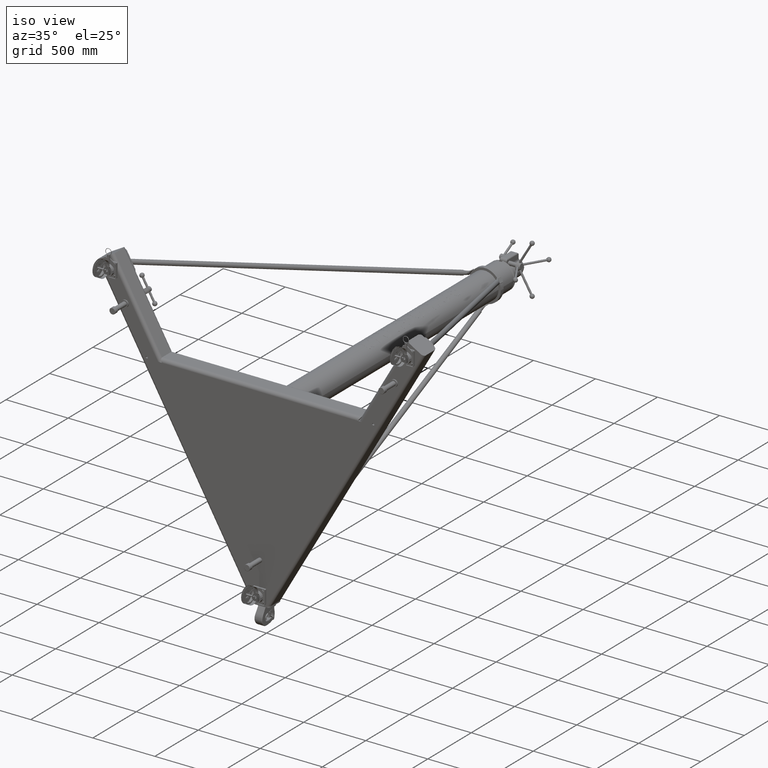
[diagram: clean part render]
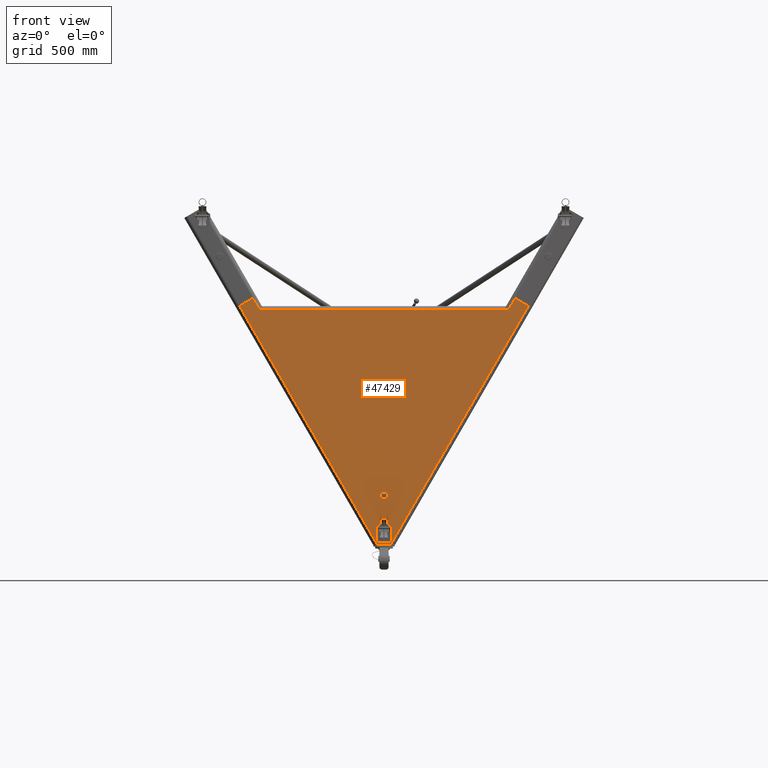
[diagram: tour spotlight — one face highlighted and labeled with its STEP entity id]
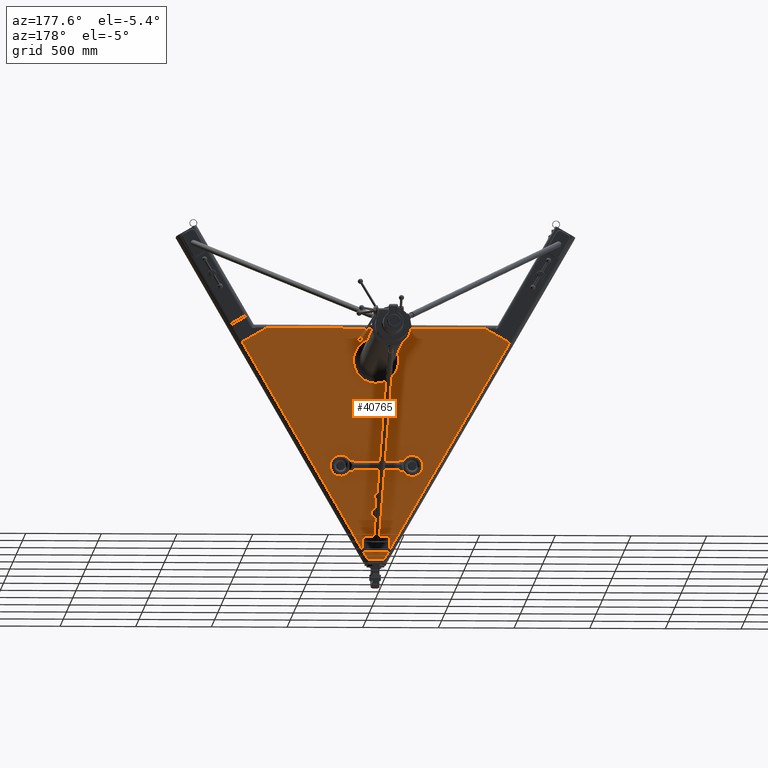
[diagram: tour spotlight — one face highlighted and labeled with its STEP entity id]
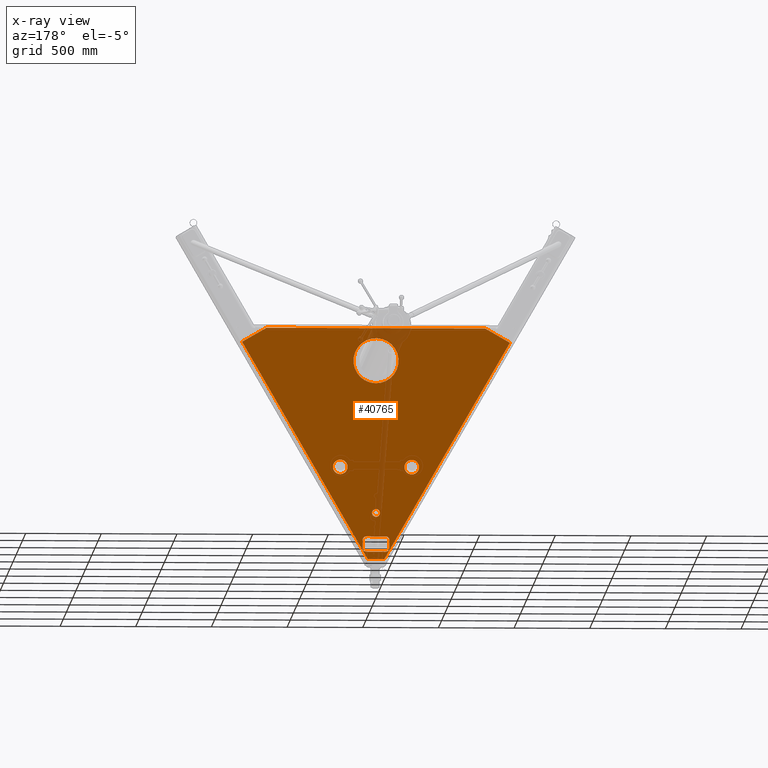
[diagram: x-ray of the same camera — body ghosted, this tour face saturated]
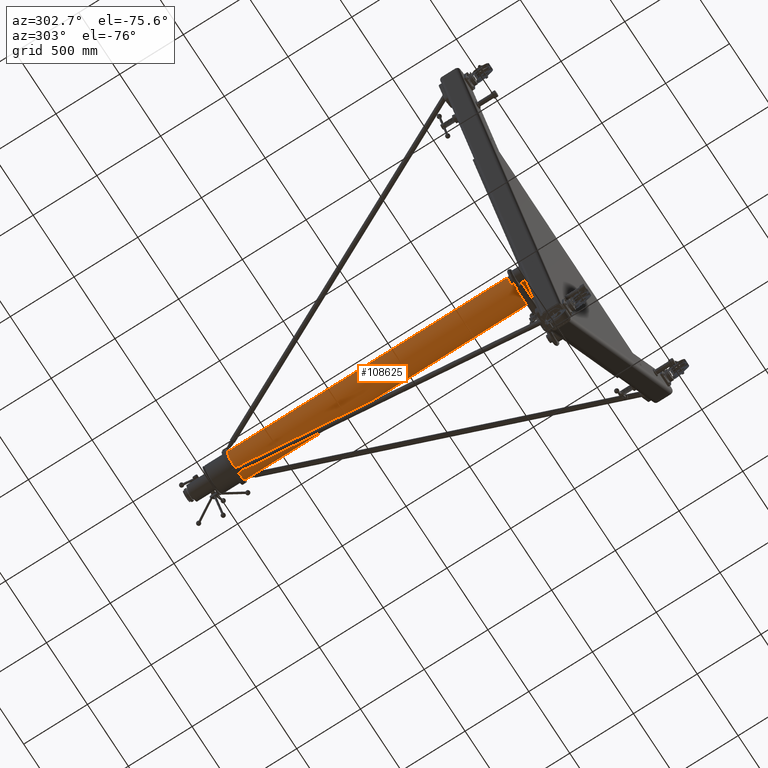
[diagram: tour spotlight — one face highlighted and labeled with its STEP entity id]
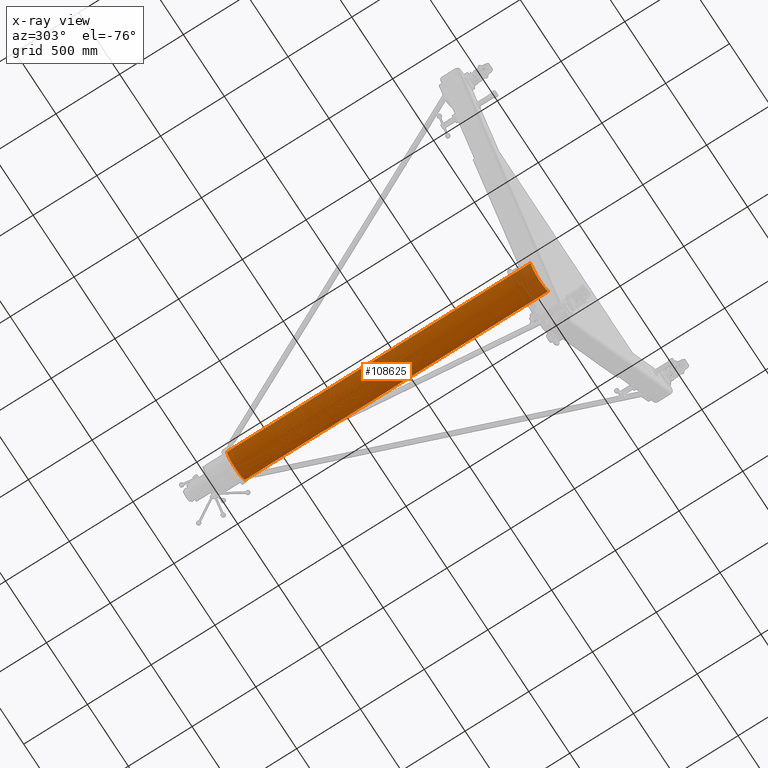
[diagram: x-ray of the same camera — body ghosted, this tour face saturated]
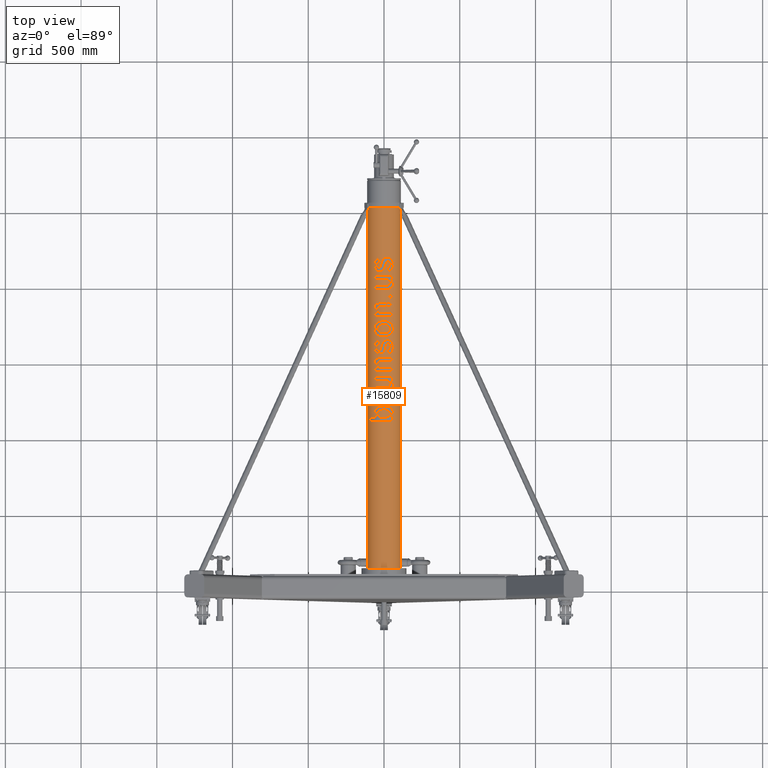
[diagram: tour spotlight — one face highlighted and labeled with its STEP entity id]
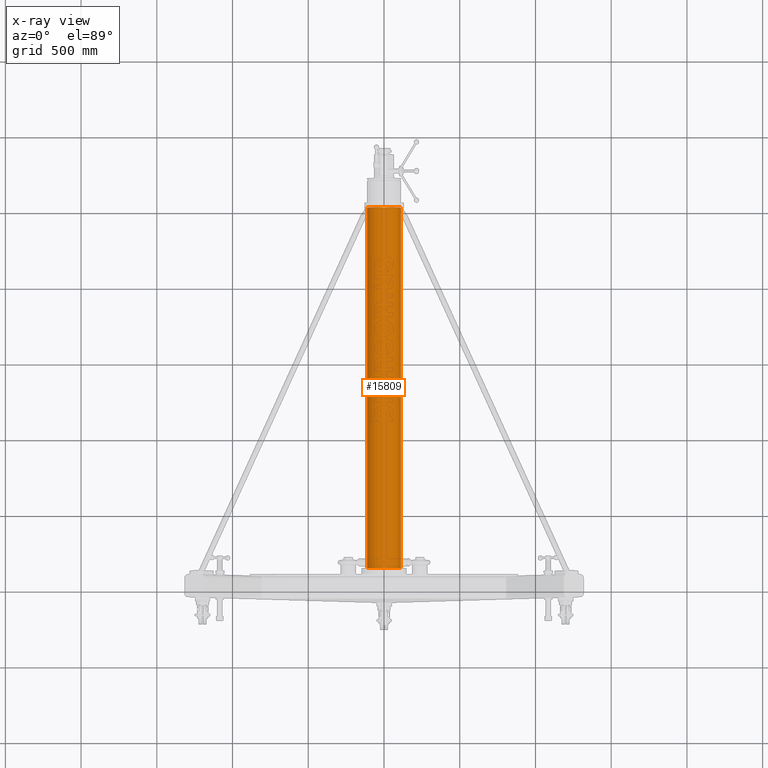
[diagram: x-ray of the same camera — body ghosted, this tour face saturated]
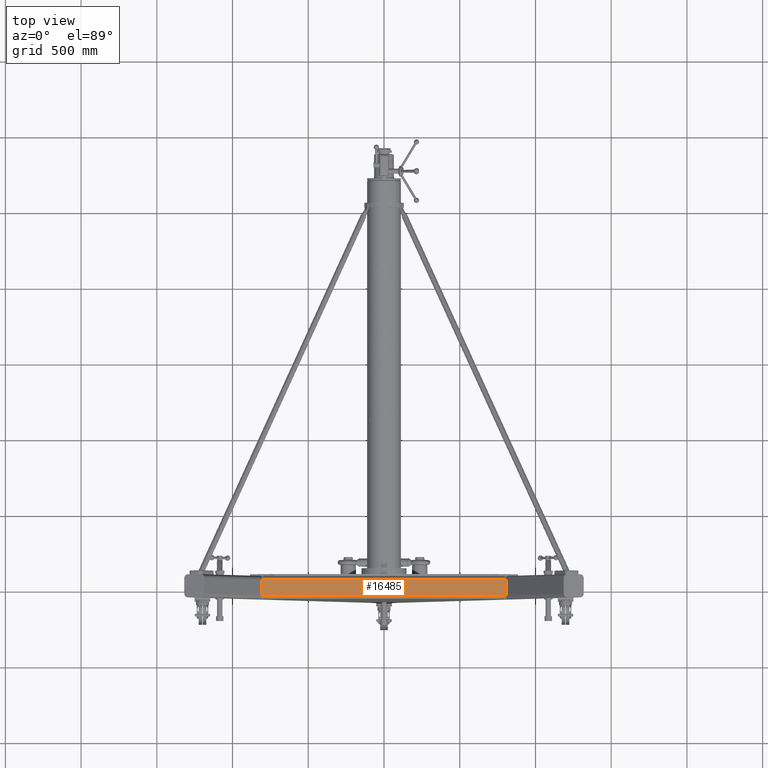
[diagram: tour spotlight — one face highlighted and labeled with its STEP entity id]
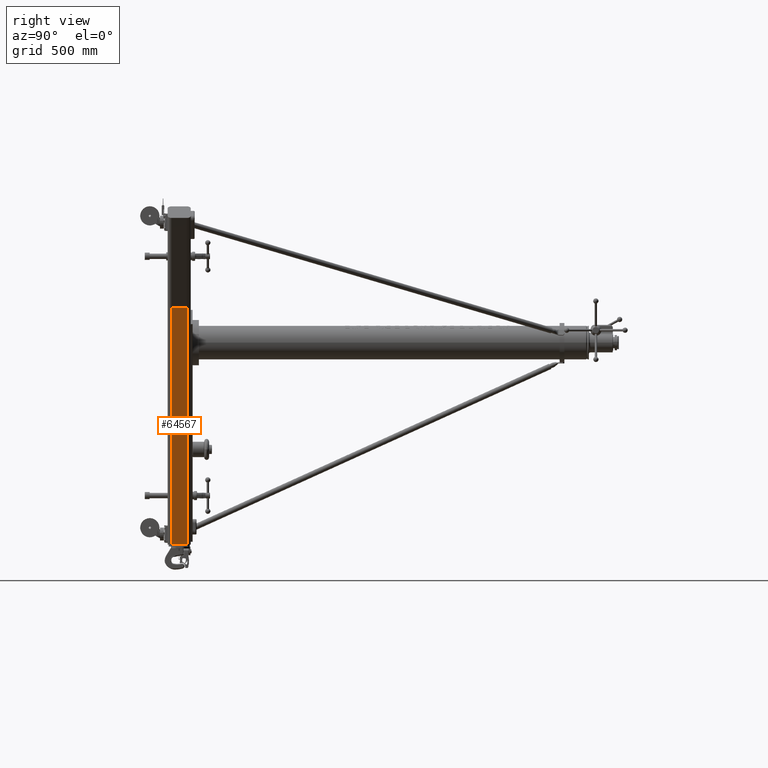
[diagram: tour spotlight — one face highlighted and labeled with its STEP entity id]
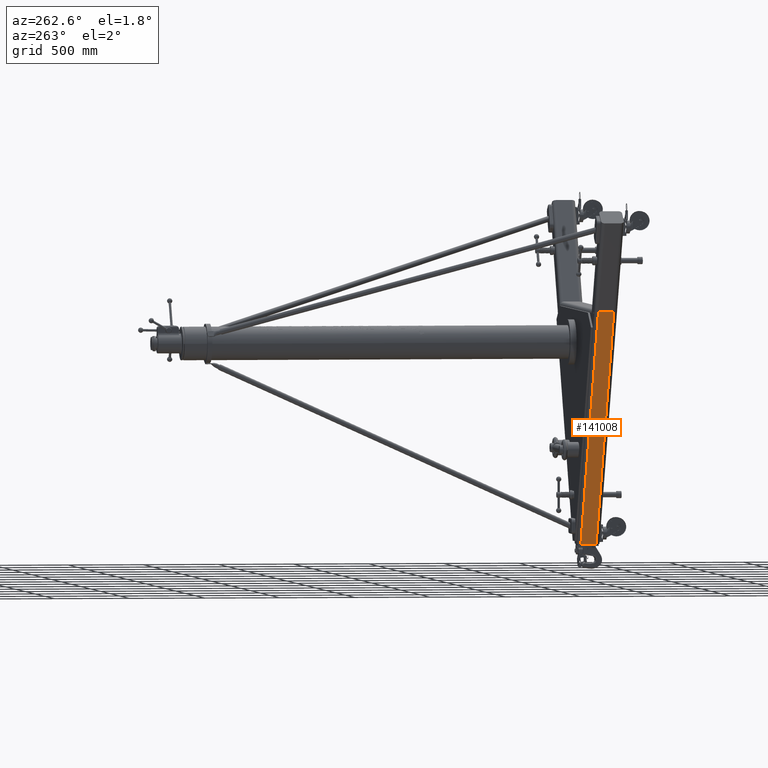
[diagram: tour spotlight — one face highlighted and labeled with its STEP entity id]
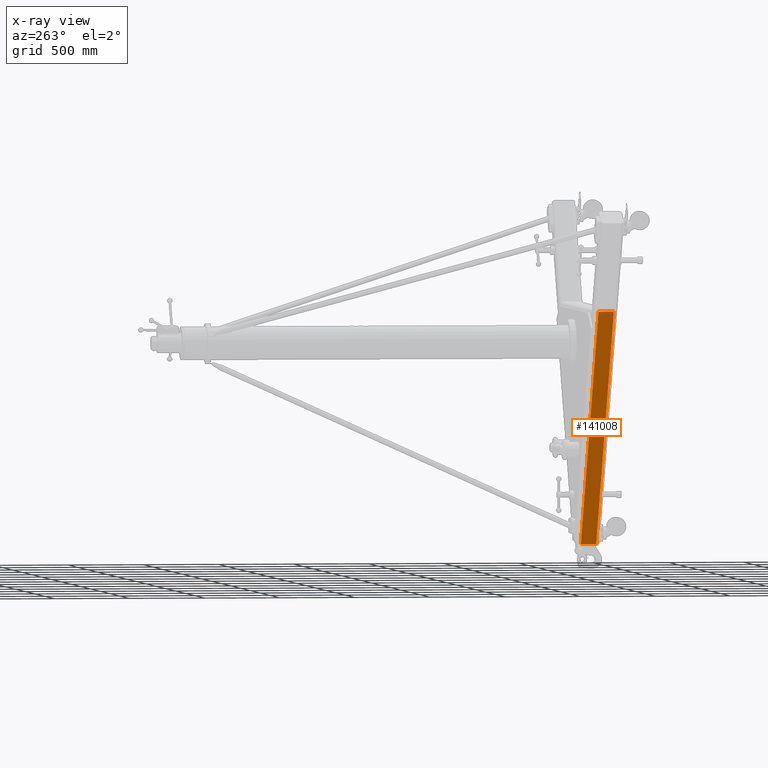
[diagram: x-ray of the same camera — body ghosted, this tour face saturated]
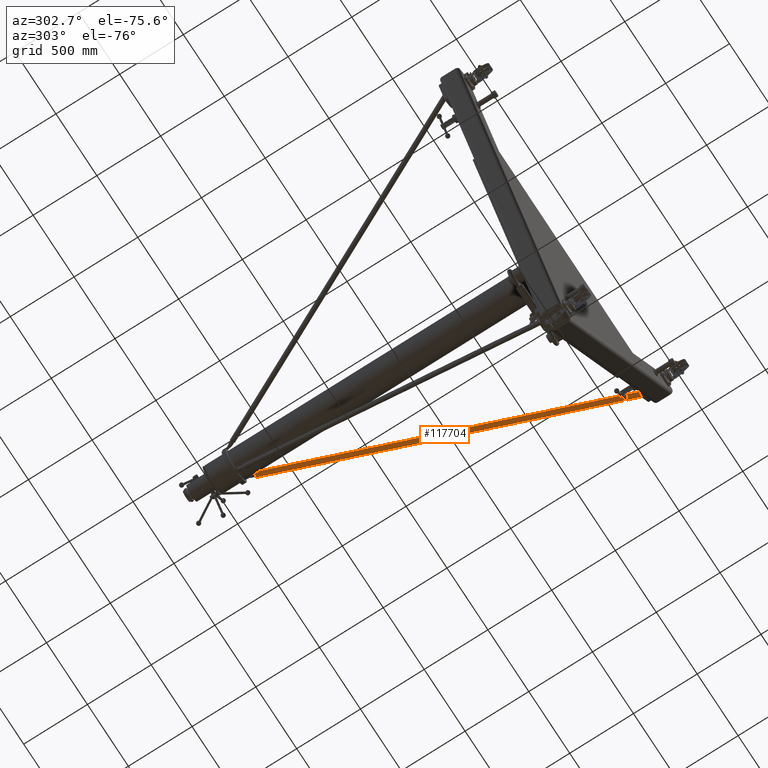
[diagram: tour spotlight — one face highlighted and labeled with its STEP entity id]
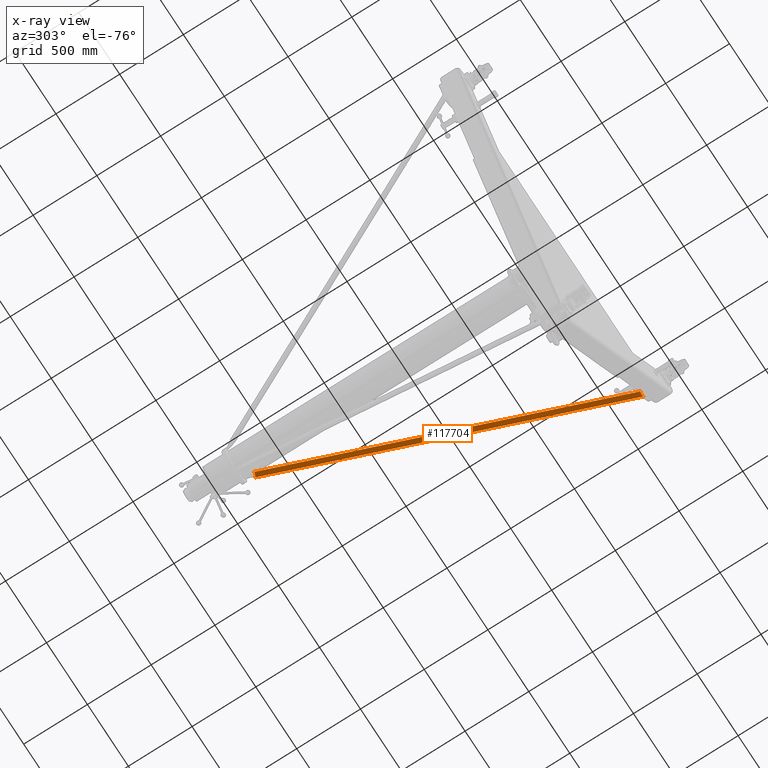
[diagram: x-ray of the same camera — body ghosted, this tour face saturated]
A machine part: a face-by-face anatomy tour. The part has 2520 B-rep faces; the first image is the clean iso view, then the 8 largest visible faces are spotlighted one at a time (largest first), each with its STEP entity span.

Face 1 — front view, entity #47429. In plain terms, the highlighted planar face has unit normal (-0, 1, 0).
Definition (entity closure, byte-faithful):
#118 = LINE ( 'NONE', #100033, #141198 ) ;
#302 = VERTEX_POINT ( 'NONE', #141267 ) ;
#1129 = DIRECTION ( 'NONE',  ( -0.4999999999999980016, -3.214108902059974353E-16, 0.8660254037844397068 ) ) ;
#1466 = ORIENTED_EDGE ( 'NONE', *, *, #112115, .F. ) ;
#2108 = CARTESIAN_POINT ( 'NONE',  ( 1.732050807568880524, -2.999999999999953815, -58.99261314031216585 ) ) ;
#2824 = LINE ( 'NONE', #2108, #92557 ) ;
#3869 = AXIS2_PLACEMENT_3D ( 'NONE', #143573, #107635, #87012 ) ;
#4087 = AXIS2_PLACEMENT_3D ( 'NONE', #74765, #43897, #63754 ) ;
#6399 = CARTESIAN_POINT ( 'NONE',  ( 36.94615242270662492, -3.000000000000001332, 1.999999999999998668 ) ) ;
#6988 = VECTOR ( 'NONE', #73680, 39.37007874015748143 ) ;
#7541 = CARTESIAN_POINT ( 'NONE',  ( 34.08493649053875885, -3.000000000000003553, 5.044228634059703786 ) ) ;
#7720 = EDGE_CURVE ( 'Defeatured_15130+Defeatured_15178+Defeatured_15173+Defeatured_15174', #124906, #41034, #69605, .T. ) ;
#7977 = DIRECTION ( 'NONE',  ( 0.4999999999999980016, -6.722153633937384362E-16, 0.8660254037844397068 ) ) ;
#8131 = ORIENTED_EDGE ( 'NONE', *, *, #99351, .T. ) ;
#8716 = DIRECTION ( 'NONE',  ( -0.0000000000000000000, 1.000000000000000000, 1.365923996832131116E-16 ) ) ;
#8874 = VERTEX_POINT ( 'NONE', #100971 ) ;
#11034 = VERTEX_POINT ( 'NONE', #96094 ) ;
#11142 = EDGE_CURVE ( 'Defeatured_15149+Defeatured_15130+Defeatured_15114+Defeatured_15114', #11034, #76611, #20543, .T. ) ;
#11337 = VECTOR ( 'NONE', #1129, 39.37007874015748143 ) ;
#12120 = EDGE_CURVE ( 'Defeatured_15130+Defeatured_1517+Defeatured_15134+Defeatured_15135', #87008, #107687, #92110, .T. ) ;
#12575 = CARTESIAN_POINT ( 'NONE',  ( -36.10098770189203776, -3.000000000000502265, 2.536131762784467281 ) ) ;
#13997 = ORIENTED_EDGE ( 'NONE', *, *, #66544, .T. ) ;
#14377 = EDGE_LOOP ( 'NONE', ( #117209, #142699 ) ) ;
#16121 = DIRECTION ( 'NONE',  ( 1.000000000000000000, -0.0000000000000000000, -7.570719237730676954E-15 ) ) ;
#17658 = CIRCLE ( 'NONE', #64623, 0.2500000000000030531 ) ;
#17785 = EDGE_CURVE ( 'Defeatured_15130+Defeatured_15179+Defeatured_15172+Defeatured_15173', #104895, #77417, #51664, .T. ) ;
#19286 = LINE ( 'NONE', #7541, #136543 ) ;
#20204 = VERTEX_POINT ( 'NONE', #142677 ) ;
#20386 = EDGE_CURVE ( 'Defeatured_15130+Defeatured_15116+Defeatured_15141+Defeatured_15141', #36804, #52714, #118, .T. ) ;
#20482 = FACE_BOUND ( 'NONE', #14377, .T. ) ;
#20543 = CIRCLE ( 'NONE', #4087, 0.3359499999999997488 ) ;
#23039 = VECTOR ( 'NONE', #7977, 39.37007874015748854 ) ;
#23090 = EDGE_CURVE ( 'Defeatured_15130+Defeatured_15120+Defeatured_15147+Defeatured_15129', #55721, #20204, #38247, .T. ) ;
#25018 = ORIENTED_EDGE ( 'NONE', *, *, #107910, .T. ) ;
#26867 = EDGE_CURVE ( 'Defeatured_15130+Defeatured_15123+Defeatured_15135+Defeatured_15146', #8874, #111938, #129949, .T. ) ;
#26931 = CARTESIAN_POINT ( 'NONE',  ( 33.00000000000000000, -2.999999999999999556, 2.000000000000000444 ) ) ;
#27518 = DIRECTION ( 'NONE',  ( 1.092739197465691877E-15, 0.0000000000000000000, -1.000000000000000000 ) ) ;
#29109 = LINE ( 'NONE', #73887, #141700 ) ;
#29325 = FACE_OUTER_BOUND ( 'NONE', #128477, .T. ) ;
#29532 = CARTESIAN_POINT ( 'NONE',  ( 2.785549589922438000E-14, -2.999999999999993339, -46.24333580064211446 ) ) ;
#29883 = DIRECTION ( 'NONE',  ( -1.000000000000000000, -4.436480360512950881E-17, 5.175893753931776028E-17 ) ) ;
#30672 = CARTESIAN_POINT ( 'NONE',  ( 36.94615242270662492, -3.000000000000001332, 1.999999999999998668 ) ) ;
#30716 = DIRECTION ( 'NONE',  ( 1.000000000000000000, -3.580501287421146418E-16, 5.551115123125783935E-17 ) ) ;
#32006 = VECTOR ( 'NONE', #30716, 39.37007874015748143 ) ;
#32439 = CARTESIAN_POINT ( 'NONE',  ( 35.70335206684280394, -3.000000000000001332, 1.999999999999997335 ) ) ;
#33025 = DIRECTION ( 'NONE',  ( 5.551115123125783935E-17, 5.863956355848616302E-31, -1.000000000000000000 ) ) ;
#33194 = DIRECTION ( 'NONE',  ( -1.000000000000000000, -4.436480360512950881E-17, 5.175893753931776028E-17 ) ) ;
#33229 = EDGE_CURVE ( 'Defeatured_15130+Defeatured_15120+Defeatured_15129+Defeatured_15134', #76738, #36920, #107743, .T. ) ;
#33726 = DIRECTION ( 'NONE',  ( 0.4999999999999979461, -6.749306798916620636E-16, 0.8660254037844398178 ) ) ;
#34846 = CARTESIAN_POINT ( 'NONE',  ( -2.000000000000008882, -3.000000000000516920, -54.24261314031212322 ) ) ;
#35828 = EDGE_CURVE ( 'Defeatured_15130+Defeatured_15177+Defeatured_15175+Defeatured_15172', #100604, #55122, #96373, .T. ) ;
#36249 = CARTESIAN_POINT ( 'NONE',  ( 34.08493649053875174, -3.000000000000007550, 5.044228634059632732 ) ) ;
#36379 = DIRECTION ( 'NONE',  ( 3.580501287421158251E-16, 1.000000000000000000, -6.506348387546901401E-31 ) ) ;
#36804 = VERTEX_POINT ( 'NONE', #115248 ) ;
#36920 = VERTEX_POINT ( 'NONE', #98985 ) ;
#37004 = ORIENTED_EDGE ( 'NONE', *, *, #67050, .T. ) ;
#37417 = ORIENTED_EDGE ( 'NONE', *, *, #53098, .F. ) ;
#37948 = DIRECTION ( 'NONE',  ( -1.000000000000000000, -0.0000000000000000000, -0.0000000000000000000 ) ) ;
#38247 = LINE ( 'NONE', #30672, #132078 ) ;
#39126 = LINE ( 'NONE', #41299, #118049 ) ;
#40013 = DIRECTION ( 'NONE',  ( -2.622574073917660504E-14, 0.0000000000000000000, -1.000000000000000000 ) ) ;
#40303 = CARTESIAN_POINT ( 'NONE',  ( -35.93301270189203933, -3.000000000000502265, 2.245190528383085304 ) ) ;
#40632 = EDGE_LOOP ( 'NONE', ( #1466, #117186, #74137 ) ) ;
#40880 = CARTESIAN_POINT ( 'NONE',  ( -2.000000000000007994, -3.000000000000514699, -58.49261314031211612 ) ) ;
#41034 = VERTEX_POINT ( 'NONE', #55464 ) ;
#41299 = CARTESIAN_POINT ( 'NONE',  ( -1.732050807568823680, -2.999999999999953815, -58.99261314031213743 ) ) ;
#42466 = LINE ( 'NONE', #74781, #32006 ) ;
#43159 = VERTEX_POINT ( 'NONE', #95088 ) ;
#43897 = DIRECTION ( 'NONE',  ( -6.735967418508100586E-17, -1.000000000000000000, -7.373173159942712213E-16 ) ) ;
#44665 = EDGE_CURVE ( 'Defeatured_15130+Defeatured_15146+Defeatured_15123+Defeatured_1518', #111938, #46061, #2824, .T. ) ;
#44795 = AXIS2_PLACEMENT_3D ( 'NONE', #56962, #36379, #101760 ) ;
#46061 = VERTEX_POINT ( 'NONE', #76229 ) ;
#46222 = ORIENTED_EDGE ( 'NONE', *, *, #33229, .T. ) ;
#46319 = CIRCLE ( 'NONE', #130735, 0.6958731249999963175 ) ;
#46625 = ORIENTED_EDGE ( 'NONE', *, *, #72150, .T. ) ;
#47429 = ADVANCED_FACE ( 'Defeatured_15130', ( #62387, #52089, #20482, #29325, #96883 ), #54262, .F. ) ;
#47794 = ORIENTED_EDGE ( 'NONE', *, *, #17785, .T. ) ;
#48853 = CARTESIAN_POINT ( 'NONE',  ( 1.750000000000010880, -3.000000000000522693, -54.24261314031214454 ) ) ;
#49428 = CARTESIAN_POINT ( 'NONE',  ( 2.000000000000011102, -2.999999999999992006, -54.24261314031213743 ) ) ;
#49502 = AXIS2_PLACEMENT_3D ( 'NONE', #40303, #52045, #120329 ) ;
#51364 = CARTESIAN_POINT ( 'NONE',  ( 1.732050807568880524, -2.999999999999953815, -58.99261314031216585 ) ) ;
#51574 = DIRECTION ( 'NONE',  ( -0.0000000000000000000, 1.000000000000000000, 1.365923996832131116E-16 ) ) ;
#51664 = CIRCLE ( 'NONE', #133766, 0.2500000000000030531 ) ;
#52045 = DIRECTION ( 'NONE',  ( -2.397576406525752302E-16, -1.000000000000000000, -5.095574663328524867E-16 ) ) ;
#52089 = FACE_BOUND ( 'NONE', #82467, .T. ) ;
#52124 = EDGE_CURVE ( 'Defeatured_15130+Defeatured_15129+Defeatured_15120+Defeatured_15120', #20204, #76738, #140033, .T. ) ;
#52357 = DIRECTION ( 'NONE',  ( -0.8660254037844397068, -4.469158686454240891E-16, 0.4999999999999980016 ) ) ;
#52714 = VERTEX_POINT ( 'NONE', #125602 ) ;
#52821 = DIRECTION ( 'NONE',  ( 0.0000000000000000000, -1.365923996832131116E-16, 1.000000000000000000 ) ) ;
#53098 = EDGE_CURVE ( 'Defeatured_15147+Defeatured_15130+Defeatured_15120+Defeatured_15198', #55721, #129453, #74818, .T. ) ;
#53462 = EDGE_CURVE ( 'Defeatured_15130+Defeatured_15174+Defeatured_15178+Defeatured_15176', #41034, #302, #87818, .T. ) ;
#54136 = CARTESIAN_POINT ( 'NONE',  ( -1.750000000000008216, -3.000000000000516920, -53.99261314031213033 ) ) ;
#54262 = PLANE ( 'NONE',  #92977 ) ;
#55122 = VERTEX_POINT ( 'NONE', #54136 ) ;
#55464 = CARTESIAN_POINT ( 'NONE',  ( 1.750000000000010880, -3.000000000000520473, -58.49261314031212322 ) ) ;
#55721 = VERTEX_POINT ( 'NONE', #105984 ) ;
#55928 = DIRECTION ( 'NONE',  ( -0.0000000000000000000, 1.000000000000000000, 1.365923996832131116E-16 ) ) ;
#56962 = CARTESIAN_POINT ( 'NONE',  ( -1.749999999999997113, -3.000000000000516920, -54.24261314031213743 ) ) ;
#58020 = VECTOR ( 'NONE', #29883, 39.37007874015748143 ) ;
#62387 = FACE_BOUND ( 'NONE', #134771, .T. ) ;
#63754 = DIRECTION ( 'NONE',  ( -0.5000000000000004441, 0.0000000000000000000, -0.8660254037844383745 ) ) ;
#64476 = CARTESIAN_POINT ( 'NONE',  ( -34.08493649053871621, -3.000000000000501821, 5.044228634059741090 ) ) ;
#64623 = AXIS2_PLACEMENT_3D ( 'NONE', #83339, #140647, #40013 ) ;
#64944 = CARTESIAN_POINT ( 'NONE',  ( 2.000000000000007550, -3.000000000000519140, -58.24261314031213743 ) ) ;
#66544 = EDGE_CURVE ( 'Defeatured_15130+Defeatured_15134+Defeatured_15120+Defeatured_1517', #36920, #87008, #124520, .T. ) ;
#67050 = EDGE_CURVE ( 'Defeatured_15130+Defeatured_15173+Defeatured_15179+Defeatured_15178', #77417, #124906, #85930, .T. ) ;
#67878 = AXIS2_PLACEMENT_3D ( 'NONE', #116204, #141157, #71377 ) ;
#69605 = CIRCLE ( 'NONE', #3869, 0.2500000000000030531 ) ;
#69694 = ORIENTED_EDGE ( 'NONE', *, *, #7720, .T. ) ;
#71116 = EDGE_CURVE ( 'Defeatured_15141+Defeatured_15130+Defeatured_15116+Defeatured_15116', #102123, #52714, #75269, .T. ) ;
#71377 = DIRECTION ( 'NONE',  ( -0.5000000000000001110, 0.0000000000000000000, 0.8660254037844385966 ) ) ;
#72150 = EDGE_CURVE ( 'Defeatured_15130+Defeatured_1518+Defeatured_15146+Defeatured_15147', #46061, #129453, #19286, .T. ) ;
#73323 = CIRCLE ( 'NONE', #99131, 0.6958731249999963175 ) ;
#73680 = DIRECTION ( 'NONE',  ( -5.551115123125783935E-17, -5.863956355848616302E-31, 1.000000000000000000 ) ) ;
#73887 = CARTESIAN_POINT ( 'NONE',  ( 36.94615242270662492, -3.000000000000001332, 1.999999999999998668 ) ) ;
#74137 = ORIENTED_EDGE ( 'NONE', *, *, #71116, .F. ) ;
#74765 = CARTESIAN_POINT ( 'NONE',  ( 35.93301270189208196, -3.000000000000001332, 2.245190528383050665 ) ) ;
#74781 = CARTESIAN_POINT ( 'NONE',  ( -1.999999999999995781, -3.000000000000518252, -53.99261314031213033 ) ) ;
#74818 = LINE ( 'NONE', #99764, #23039 ) ;
#75269 = CIRCLE ( 'NONE', #49502, 0.3359499999999999154 ) ;
#75457 = ORIENTED_EDGE ( 'NONE', *, *, #52124, .T. ) ;
#76229 = CARTESIAN_POINT ( 'NONE',  ( 37.54903810567651590, -3.000000000000006661, 3.044228634059642502 ) ) ;
#76611 = VERTEX_POINT ( 'NONE', #32439 ) ;
#76738 = VERTEX_POINT ( 'NONE', #105692 ) ;
#77417 = VERTEX_POINT ( 'NONE', #49428 ) ;
#79589 = ORIENTED_EDGE ( 'NONE', *, *, #12120, .T. ) ;
#80658 = VECTOR ( 'NONE', #16121, 39.37007874015748143 ) ;
#81755 = EDGE_CURVE ( 'Defeatured_15130+Defeatured_15175+Defeatured_15176+Defeatured_15177', #43159, #100604, #138378, .T. ) ;
#82467 = EDGE_LOOP ( 'NONE', ( #136604, #93132, #111870, #98609, #98759, #47794, #37004, #69694 ) ) ;
#83339 = CARTESIAN_POINT ( 'NONE',  ( -1.749999999999992895, -3.000000000000514699, -58.24261314031212322 ) ) ;
#84689 = CARTESIAN_POINT ( 'NONE',  ( -2.000000000000007994, -3.000000000000514699, -58.49261314031211612 ) ) ;
#85777 = ORIENTED_EDGE ( 'NONE', *, *, #86570, .T. ) ;
#85930 = LINE ( 'NONE', #121898, #121653 ) ;
#86081 = DIRECTION ( 'NONE',  ( 0.4999999999999980016, 7.214776233324665478E-16, -0.8660254037844397068 ) ) ;
#86570 = EDGE_CURVE ( 'Defeatured_15130+Defeatured_15112+Defeatured_15112+Defeatured_15112', #141830, #112908, #73323, .T. ) ;
#87008 = VERTEX_POINT ( 'NONE', #64476 ) ;
#87012 = DIRECTION ( 'NONE',  ( -5.245148147835321008E-14, 0.0000000000000000000, -1.000000000000000000 ) ) ;
#87021 = ORIENTED_EDGE ( 'NONE', *, *, #23090, .T. ) ;
#87818 = LINE ( 'NONE', #40880, #112168 ) ;
#92110 = LINE ( 'NONE', #127361, #121508 ) ;
#92557 = VECTOR ( 'NONE', #33726, 39.37007874015748143 ) ;
#92977 = AXIS2_PLACEMENT_3D ( 'NONE', #120372, #8716, #52821 ) ;
#93132 = ORIENTED_EDGE ( 'NONE', *, *, #116739, .T. ) ;
#93640 = CARTESIAN_POINT ( 'NONE',  ( 2.785549589922438000E-14, -2.999999999999993339, -45.54746267564212303 ) ) ;
#95088 = CARTESIAN_POINT ( 'NONE',  ( -1.999999999999993783, -3.000000000000517808, -58.24261314031213033 ) ) ;
#96094 = CARTESIAN_POINT ( 'NONE',  ( 36.16267333694135999, -3.000000000000001332, 1.999999999999997335 ) ) ;
#96098 = CIRCLE ( 'NONE', #67878, 0.3359499999999999154 ) ;
#96373 = CIRCLE ( 'NONE', #44795, 0.2500000000000030531 ) ;
#96883 = FACE_BOUND ( 'NONE', #40632, .T. ) ;
#98609 = ORIENTED_EDGE ( 'NONE', *, *, #35828, .T. ) ;
#98759 = ORIENTED_EDGE ( 'NONE', *, *, #118647, .T. ) ;
#98985 = CARTESIAN_POINT ( 'NONE',  ( -32.32735026918957288, -3.000000000000503597, 2.000000000000024425 ) ) ;
#99131 = AXIS2_PLACEMENT_3D ( 'NONE', #111737, #55928, #109319 ) ;
#99351 = EDGE_CURVE ( 'Defeatured_15130+Defeatured_15135+Defeatured_1517+Defeatured_15123', #107687, #8874, #39126, .T. ) ;
#99764 = CARTESIAN_POINT ( 'NONE',  ( -3.415063509461096380, -2.999999999999953371, -59.90767664977326490 ) ) ;
#100033 = CARTESIAN_POINT ( 'NONE',  ( 36.94615242270662492, -3.000000000000001332, 1.999999999999998668 ) ) ;
#100604 = VERTEX_POINT ( 'NONE', #34846 ) ;
#100971 = CARTESIAN_POINT ( 'NONE',  ( -1.732050807568823680, -2.999999999999953815, -58.99261314031213743 ) ) ;
#101760 = DIRECTION ( 'NONE',  ( -1.092739197465691877E-15, 0.0000000000000000000, -1.000000000000000000 ) ) ;
#102123 = VERTEX_POINT ( 'NONE', #12575 ) ;
#103935 = DIRECTION ( 'NONE',  ( 3.580501287421158251E-16, 1.000000000000000000, -6.506348387546901401E-31 ) ) ;
#104895 = VERTEX_POINT ( 'NONE', #112754 ) ;
#105692 = CARTESIAN_POINT ( 'NONE',  ( -31.17264973081037382, -2.999999999999999556, 2.000000000000002220 ) ) ;
#105984 = CARTESIAN_POINT ( 'NONE',  ( 32.32735026918959420, -3.000000000000001332, 1.999999999999945821 ) ) ;
#107635 = DIRECTION ( 'NONE',  ( 3.580501287421158251E-16, 1.000000000000000000, -6.506348387546901401E-31 ) ) ;
#107687 = VERTEX_POINT ( 'NONE', #108468 ) ;
#107720 = DIRECTION ( 'NONE',  ( -1.000000000000000000, 3.580501287421146418E-16, -5.551115123125783935E-17 ) ) ;
#107743 = LINE ( 'NONE', #6399, #58020 ) ;
#107910 = EDGE_CURVE ( 'Defeatured_15130+Defeatured_15112+Defeatured_15112+Defeatured_15112', #112908, #141830, #46319, .T. ) ;
#108468 = CARTESIAN_POINT ( 'NONE',  ( -37.54903810567647326, -3.000000000000501377, 3.044228634059746419 ) ) ;
#109319 = DIRECTION ( 'NONE',  ( 0.0000000000000000000, 0.0000000000000000000, 1.000000000000000000 ) ) ;
#111737 = CARTESIAN_POINT ( 'NONE',  ( 2.785549589922438000E-14, -2.999999999999993339, -46.24333580064211446 ) ) ;
#111870 = ORIENTED_EDGE ( 'NONE', *, *, #81755, .T. ) ;
#111938 = VERTEX_POINT ( 'NONE', #120001 ) ;
#112115 = EDGE_CURVE ( 'Defeatured_15141+Defeatured_15130+Defeatured_15116+Defeatured_15116', #36804, #102123, #96098, .T. ) ;
#112168 = VECTOR ( 'NONE', #107720, 39.37007874015748143 ) ;
#112754 = CARTESIAN_POINT ( 'NONE',  ( 1.750000000000001998, -3.000000000000519140, -53.99261314031213033 ) ) ;
#112908 = VERTEX_POINT ( 'NONE', #93640 ) ;
#113511 = CARTESIAN_POINT ( 'NONE',  ( 3.415063509461153224, -3.000000000000480505, -59.90767664977325069 ) ) ;
#114371 = VECTOR ( 'NONE', #37948, 39.37007874015748143 ) ;
#115248 = CARTESIAN_POINT ( 'NONE',  ( -35.70335206684278972, -3.000000000000502265, 2.000000000000002665 ) ) ;
#116204 = CARTESIAN_POINT ( 'NONE',  ( -35.93301270189203933, -3.000000000000502265, 2.245190528383085304 ) ) ;
#116739 = EDGE_CURVE ( 'Defeatured_15130+Defeatured_15176+Defeatured_15174+Defeatured_15175', #302, #43159, #17658, .T. ) ;
#117186 = ORIENTED_EDGE ( 'NONE', *, *, #20386, .T. ) ;
#117209 = ORIENTED_EDGE ( 'NONE', *, *, #11142, .F. ) ;
#118049 = VECTOR ( 'NONE', #86081, 39.37007874015748854 ) ;
#118647 = EDGE_CURVE ( 'Defeatured_15130+Defeatured_15172+Defeatured_15177+Defeatured_15179', #55122, #104895, #42466, .T. ) ;
#118710 = DIRECTION ( 'NONE',  ( -1.000000000000000000, -4.436480360512950881E-17, 5.175893753931776028E-17 ) ) ;
#119561 = DIRECTION ( 'NONE',  ( -1.000000000000000000, -4.436480360512950881E-17, 5.175893753931776028E-17 ) ) ;
#120001 = CARTESIAN_POINT ( 'NONE',  ( 1.732050807568880524, -2.999999999999954259, -58.99261314031216585 ) ) ;
#120329 = DIRECTION ( 'NONE',  ( -0.5000000000000001110, 0.0000000000000000000, 0.8660254037844385966 ) ) ;
#120372 = CARTESIAN_POINT ( 'NONE',  ( 33.00000000000000000, -2.999999999999999112, -2.000000000000001332 ) ) ;
#121508 = VECTOR ( 'NONE', #136947, 39.37007874015748143 ) ;
#121653 = VECTOR ( 'NONE', #33025, 39.37007874015748143 ) ;
#121898 = CARTESIAN_POINT ( 'NONE',  ( 2.000000000000003109, -3.000000000000522693, -58.49261314031213743 ) ) ;
#122033 = ORIENTED_EDGE ( 'NONE', *, *, #26867, .T. ) ;
#124520 = LINE ( 'NONE', #113511, #11337 ) ;
#124906 = VERTEX_POINT ( 'NONE', #64944 ) ;
#125602 = CARTESIAN_POINT ( 'NONE',  ( -36.16267333694128894, -3.000000000000502265, 2.000000000000002665 ) ) ;
#127361 = CARTESIAN_POINT ( 'NONE',  ( -37.54903810567647326, -3.000000000000501821, 3.044228634059746863 ) ) ;
#128477 = EDGE_LOOP ( 'NONE', ( #132927, #46625, #37417, #87021, #75457, #46222, #13997, #79589, #8131, #122033 ) ) ;
#128726 = DIRECTION ( 'NONE',  ( 0.0000000000000000000, 0.0000000000000000000, 1.000000000000000000 ) ) ;
#129453 = VERTEX_POINT ( 'NONE', #36249 ) ;
#129949 = LINE ( 'NONE', #51364, #80658 ) ;
#130735 = AXIS2_PLACEMENT_3D ( 'NONE', #29532, #51574, #128726 ) ;
#132078 = VECTOR ( 'NONE', #119561, 39.37007874015748143 ) ;
#132927 = ORIENTED_EDGE ( 'NONE', *, *, #44665, .T. ) ;
#133766 = AXIS2_PLACEMENT_3D ( 'NONE', #48853, #103935, #27518 ) ;
#134564 = EDGE_CURVE ( 'Defeatured_15130+Defeatured_15114+Defeatured_15149+Defeatured_15149', #11034, #76611, #29109, .T. ) ;
#134771 = EDGE_LOOP ( 'NONE', ( #25018, #85777 ) ) ;
#136543 = VECTOR ( 'NONE', #52357, 39.37007874015748143 ) ;
#136604 = ORIENTED_EDGE ( 'NONE', *, *, #53462, .T. ) ;
#136947 = DIRECTION ( 'NONE',  ( -0.8660254037844397068, 5.990073404061892435E-16, -0.4999999999999980016 ) ) ;
#138378 = LINE ( 'NONE', #84689, #6988 ) ;
#140033 = LINE ( 'NONE', #26931, #114371 ) ;
#140647 = DIRECTION ( 'NONE',  ( 3.580501287421158251E-16, 1.000000000000000000, -6.506348387546901401E-31 ) ) ;
#141157 = DIRECTION ( 'NONE',  ( -2.397576406525752302E-16, -1.000000000000000000, -5.095574663328524867E-16 ) ) ;
#141198 = VECTOR ( 'NONE', #33194, 39.37007874015748143 ) ;
#141267 = CARTESIAN_POINT ( 'NONE',  ( -1.749999999999999334, -3.000000000000514699, -58.49261314031211612 ) ) ;
#141700 = VECTOR ( 'NONE', #118710, 39.37007874015748143 ) ;
#141830 = VERTEX_POINT ( 'NONE', #142318 ) ;
#142318 = CARTESIAN_POINT ( 'NONE',  ( 2.811845098572017775E-14, -2.999999999999993339, -46.93920892564211300 ) ) ;
#142677 = CARTESIAN_POINT ( 'NONE',  ( 31.17264973081037738, -2.999999999999999556, 1.999999999999998890 ) ) ;
#142699 = ORIENTED_EDGE ( 'NONE', *, *, #134564, .T. ) ;
#143573 = CARTESIAN_POINT ( 'NONE',  ( 1.750000000000006439, -3.000000000000520473, -58.24261314031213033 ) ) ;

Face 2 — auxiliary view, entity #40765. An x-ray twin of the same camera follows (body ghosted, this face saturated) — the face is partly hidden behind the body. In plain terms, the highlighted planar face has unit normal (-0, 1, 0).
Definition (entity closure, byte-faithful):
#514 = CIRCLE ( 'NONE', #82603, 1.004999999999994342 ) ;
#732 = VERTEX_POINT ( 'NONE', #144645 ) ;
#1860 = CARTESIAN_POINT ( 'NONE',  ( -2.164646281325058652, 3.499999999998989697, -58.24333580064221394 ) ) ;
#2710 = EDGE_CURVE ( 'Defeatured_15110+Defeatured_15152+Defeatured_15156+Defeatured_15157', #140001, #23752, #18968, .T. ) ;
#3087 = CIRCLE ( 'NONE', #106267, 0.9999999999999947820 ) ;
#3581 = CARTESIAN_POINT ( 'NONE',  ( -9.300000000000000711, 3.499999999998989697, -32.34333580064210878 ) ) ;
#4159 = FACE_BOUND ( 'NONE', #109629, .T. ) ;
#4235 = VERTEX_POINT ( 'NONE', #94735 ) ;
#5221 = CARTESIAN_POINT ( 'NONE',  ( 36.95000000000002416, 3.499999999998989697, 2.006664199357772738 ) ) ;
#6418 = LINE ( 'NONE', #28445, #51477 ) ;
#7547 = EDGE_LOOP ( 'NONE', ( #23509, #113176 ) ) ;
#7818 = CARTESIAN_POINT ( 'NONE',  ( -2.500000000000194955, 3.499999999998989697, -55.35333580184362745 ) ) ;
#8234 = CARTESIAN_POINT ( 'NONE',  ( 5.463695905913112180E-16, 3.500000001124806026, -6.493333073213130469 ) ) ;
#9483 = EDGE_CURVE ( 'Defeatured_15158+Defeatured_15110+Defeatured_15151+Defeatured_15153', #109431, #35139, #136278, .T. ) ;
#10386 = CARTESIAN_POINT ( 'NONE',  ( 2.499999999999831246, 3.499999999998989697, -55.35333580184366298 ) ) ;
#10604 = EDGE_CURVE ( 'Defeatured_151588+Defeatured_15110+Defeatured_15110+Defeatured_15110', #732, #129072, #69592, .T. ) ;
#10692 = LINE ( 'NONE', #134833, #140008 ) ;
#10995 = AXIS2_PLACEMENT_3D ( 'NONE', #69335, #50215, #114152 ) ;
#11819 = DIRECTION ( 'NONE',  ( 0.0000000000000000000, 0.0000000000000000000, 1.000000000000000000 ) ) ;
#13310 = ORIENTED_EDGE ( 'NONE', *, *, #47946, .T. ) ;
#14410 = EDGE_CURVE ( 'Defeatured_15156+Defeatured_15110+Defeatured_15152+Defeatured_15151', #140001, #88354, #6418, .T. ) ;
#15046 = VERTEX_POINT ( 'NONE', #41477 ) ;
#15580 = AXIS2_PLACEMENT_3D ( 'NONE', #30284, #140487, #50887 ) ;
#16072 = AXIS2_PLACEMENT_3D ( 'NONE', #10386, #90397, #11819 ) ;
#16095 = EDGE_CURVE ( 'Defeatured_151572+Defeatured_15110+Defeatured_15110+Defeatured_15110', #115382, #68042, #44422, .T. ) ;
#16621 = DIRECTION ( 'NONE',  ( -0.0000000000000000000, 1.000000000000000000, 0.0000000000000000000 ) ) ;
#17309 = AXIS2_PLACEMENT_3D ( 'NONE', #127864, #140335, #116109 ) ;
#18710 = CARTESIAN_POINT ( 'NONE',  ( -5.427792253503806563, 3.500000001124806026, -8.741598238358038842 ) ) ;
#18968 = LINE ( 'NONE', #96831, #68774 ) ;
#20257 = CARTESIAN_POINT ( 'NONE',  ( -9.300000000000000711, 3.499999999998989697, -34.24333580064212157 ) ) ;
#23099 = EDGE_CURVE ( 'NONE', #65463, #45426, #3087, .T. ) ;
#23509 = ORIENTED_EDGE ( 'NONE', *, *, #50406, .F. ) ;
#23752 = VERTEX_POINT ( 'NONE', #113418 ) ;
#23808 = CIRCLE ( 'NONE', #124668, 5.875000000000005329 ) ;
#24063 = CARTESIAN_POINT ( 'NONE',  ( -2.500000000000170974, 3.499999999998989697, -53.35333580184366298 ) ) ;
#24332 = AXIS2_PLACEMENT_3D ( 'NONE', #105514, #16621, #49688 ) ;
#24620 = DIRECTION ( 'NONE',  ( 1.000000000000000000, 0.0000000000000000000, 0.0000000000000000000 ) ) ;
#26145 = VERTEX_POINT ( 'NONE', #123049 ) ;
#27262 = DIRECTION ( 'NONE',  ( -0.5000000000000001110, 0.0000000000000000000, -0.8660254037844385966 ) ) ;
#27637 = FACE_BOUND ( 'NONE', #143475, .T. ) ;
#28053 = AXIS2_PLACEMENT_3D ( 'NONE', #20257, #73166, #29113 ) ;
#28445 = CARTESIAN_POINT ( 'NONE',  ( -34.82499999999998863, 3.499999999998989697, -1.673943766726091242 ) ) ;
#29113 = DIRECTION ( 'NONE',  ( 0.0000000000000000000, 0.0000000000000000000, 1.000000000000000000 ) ) ;
#30188 = CARTESIAN_POINT ( 'NONE',  ( -2.164646281325058652, 3.499999999998989697, -58.24333580064221394 ) ) ;
#30284 = CARTESIAN_POINT ( 'NONE',  ( 9.300000000000000711, 3.499999999998989697, -34.24333580064212157 ) ) ;
#30789 = CARTESIAN_POINT ( 'NONE',  ( 34.82500000000002416, 3.499999999998989697, -1.673943766726091242 ) ) ;
#32089 = AXIS2_PLACEMENT_3D ( 'NONE', #7818, #132688, #87840 ) ;
#32201 = EDGE_CURVE ( 'NONE', #125843, #106994, #10692, .T. ) ;
#33388 = CARTESIAN_POINT ( 'NONE',  ( -9.300000000000000711, 3.499999999998989697, -36.14333580064214146 ) ) ;
#35139 = VERTEX_POINT ( 'NONE', #72468 ) ;
#35709 = CARTESIAN_POINT ( 'NONE',  ( 5.245389783511426437E-15, 3.499999999998989697, -61.99261314031225822 ) ) ;
#36438 = EDGE_CURVE ( 'Defeatured_15110+Defeatured_15153+Defeatured_15157+Defeatured_15158', #86150, #35139, #59592, .T. ) ;
#37862 = DIRECTION ( 'NONE',  ( 0.0000000000000000000, 1.000000000000000000, 0.0000000000000000000 ) ) ;
#37928 = FACE_OUTER_BOUND ( 'NONE', #122998, .T. ) ;
#38283 = VECTOR ( 'NONE', #61868, 39.37007874015748143 ) ;
#38709 = CIRCLE ( 'NONE', #17309, 1.900000000000016342 ) ;
#39323 = DIRECTION ( 'NONE',  ( -0.9238795325112864054, 0.0000000000000000000, -0.3826834323650907255 ) ) ;
#39636 = VERTEX_POINT ( 'NONE', #44064 ) ;
#39872 = VECTOR ( 'NONE', #96460, 39.37007874015748143 ) ;
#40765 = ADVANCED_FACE ( 'Defeatured_15110', ( #70972, #115794, #27637, #4159, #37928, #82713 ), #60696, .T. ) ;
#40767 = CARTESIAN_POINT ( 'NONE',  ( -2.500000000000168310, 3.499999999998989697, -52.35333580184367719 ) ) ;
#41477 = CARTESIAN_POINT ( 'NONE',  ( 3.499999999999791722, 3.499999999998989697, -55.35333580210113524 ) ) ;
#44064 = CARTESIAN_POINT ( 'NONE',  ( 1.848133715641419764E-14, 3.499999999998989697, -47.24833580064220939 ) ) ;
#44422 = CIRCLE ( 'NONE', #28053, 1.900000000000016342 ) ;
#44866 = CARTESIAN_POINT ( 'NONE',  ( -3.500000000000189626, 3.499999999998989697, -55.35333580210112103 ) ) ;
#45426 = VERTEX_POINT ( 'NONE', #119777 ) ;
#45874 = DIRECTION ( 'NONE',  ( 0.0000000000000000000, 0.0000000000000000000, 1.000000000000000000 ) ) ;
#46189 = EDGE_LOOP ( 'NONE', ( #82292, #76280, #115139, #86096, #64003, #124166, #97354, #13310 ) ) ;
#47946 = EDGE_CURVE ( 'NONE', #106994, #26145, #67281, .T. ) ;
#49688 = DIRECTION ( 'NONE',  ( 0.0000000000000000000, 0.0000000000000000000, 1.000000000000000000 ) ) ;
#50215 = DIRECTION ( 'NONE',  ( -0.0000000000000000000, 1.000000000000000000, -0.0000000000000000000 ) ) ;
#50406 = EDGE_CURVE ( 'Defeatured_151588+Defeatured_15110+Defeatured_15110+Defeatured_15110', #129072, #732, #102418, .T. ) ;
#50510 = DIRECTION ( 'NONE',  ( -0.8660254037844380415, -0.0000000000000000000, -0.5000000000000007772 ) ) ;
#50705 = VERTEX_POINT ( 'NONE', #134533 ) ;
#50887 = DIRECTION ( 'NONE',  ( 0.0000000000000000000, 0.0000000000000000000, 1.000000000000000000 ) ) ;
#51477 = VECTOR ( 'NONE', #50510, 39.37007874015748854 ) ;
#52038 = AXIS2_PLACEMENT_3D ( 'NONE', #56876, #113417, #136924 ) ;
#54053 = ORIENTED_EDGE ( 'NONE', *, *, #65023, .T. ) ;
#55507 = DIRECTION ( 'NONE',  ( -3.087132013281393712E-15, -0.0000000000000000000, -1.000000000000000000 ) ) ;
#56341 = CARTESIAN_POINT ( 'NONE',  ( 2.499999999999829026, 3.499999999998989697, -56.35333580184367719 ) ) ;
#56876 = CARTESIAN_POINT ( 'NONE',  ( 1.835826015309988831E-14, 3.499999999998989697, -46.24333580064221394 ) ) ;
#57748 = LINE ( 'NONE', #35709, #65440 ) ;
#58223 = CIRCLE ( 'NONE', #16072, 1.000000000000003553 ) ;
#59592 = LINE ( 'NONE', #5221, #112938 ) ;
#60696 = PLANE ( 'NONE',  #24332 ) ;
#60747 = LINE ( 'NONE', #118009, #77606 ) ;
#61457 = CIRCLE ( 'NONE', #52038, 1.004999999999994342 ) ;
#61868 = DIRECTION ( 'NONE',  ( 1.000000000000000000, 0.0000000000000000000, -3.087132013281385429E-15 ) ) ;
#61899 = AXIS2_PLACEMENT_3D ( 'NONE', #24063, #90160, #136452 ) ;
#64003 = ORIENTED_EDGE ( 'NONE', *, *, #69773, .T. ) ;
#64323 = EDGE_CURVE ( 'NONE', #67645, #15046, #58223, .T. ) ;
#65023 = EDGE_CURVE ( 'Defeatured_15110+Defeatured_15151+Defeatured_15158+Defeatured_15156', #109431, #88354, #57748, .T. ) ;
#65440 = VECTOR ( 'NONE', #77583, 39.37007874015748143 ) ;
#65463 = VERTEX_POINT ( 'NONE', #88425 ) ;
#66251 = ORIENTED_EDGE ( 'NONE', *, *, #77449, .F. ) ;
#67281 = CIRCLE ( 'NONE', #32089, 1.000000000000003553 ) ;
#67645 = VERTEX_POINT ( 'NONE', #56341 ) ;
#68042 = VERTEX_POINT ( 'NONE', #33388 ) ;
#68774 = VECTOR ( 'NONE', #84351, 39.37007874015748143 ) ;
#69335 = CARTESIAN_POINT ( 'NONE',  ( 9.300000000000000711, 3.499999999998989697, -34.24333580064212157 ) ) ;
#69592 = CIRCLE ( 'NONE', #10995, 1.900000000000016342 ) ;
#69773 = EDGE_CURVE ( 'NONE', #45426, #139973, #115602, .T. ) ;
#69873 = EDGE_LOOP ( 'NONE', ( #94627, #122743 ) ) ;
#70393 = ORIENTED_EDGE ( 'NONE', *, *, #71584, .F. ) ;
#70972 = FACE_BOUND ( 'NONE', #69873, .T. ) ;
#71584 = EDGE_CURVE ( 'Defeatured_151506+Defeatured_15110+Defeatured_15110+Defeatured_15110', #114235, #4235, #23808, .T. ) ;
#72468 = CARTESIAN_POINT ( 'NONE',  ( 2.164646281325082189, 3.499999999998989697, -58.24333580064221394 ) ) ;
#73166 = DIRECTION ( 'NONE',  ( -0.0000000000000000000, 1.000000000000000000, -0.0000000000000000000 ) ) ;
#73433 = EDGE_CURVE ( 'Defeatured_15159+Defeatured_15110+Defeatured_15110+Defeatured_15110', #39636, #50705, #514, .T. ) ;
#75573 = DIRECTION ( 'NONE',  ( -0.8660254037844380415, 0.0000000000000000000, 0.5000000000000007772 ) ) ;
#76280 = ORIENTED_EDGE ( 'NONE', *, *, #64323, .T. ) ;
#77449 = EDGE_CURVE ( 'Defeatured_151506+Defeatured_15110+Defeatured_15110+Defeatured_15110', #4235, #114235, #91184, .T. ) ;
#77583 = DIRECTION ( 'NONE',  ( -0.4999999999999998335, 0.0000000000000000000, 0.8660254037844388186 ) ) ;
#77606 = VECTOR ( 'NONE', #129772, 39.37007874015748143 ) ;
#78897 = DIRECTION ( 'NONE',  ( 0.0000000000000000000, 1.000000000000000000, 0.0000000000000000000 ) ) ;
#79431 = ORIENTED_EDGE ( 'NONE', *, *, #14410, .F. ) ;
#82292 = ORIENTED_EDGE ( 'NONE', *, *, #138822, .T. ) ;
#82603 = AXIS2_PLACEMENT_3D ( 'NONE', #89907, #78897, #45874 ) ;
#82713 = FACE_BOUND ( 'NONE', #46189, .T. ) ;
#83889 = CARTESIAN_POINT ( 'NONE',  ( -1.618067641457108095E-13, 3.499999999998989697, -56.35333580184366298 ) ) ;
#84351 = DIRECTION ( 'NONE',  ( 1.000000000000000000, 0.0000000000000000000, -1.839099292081151468E-16 ) ) ;
#84930 = ORIENTED_EDGE ( 'NONE', *, *, #9483, .F. ) ;
#86096 = ORIENTED_EDGE ( 'NONE', *, *, #23099, .T. ) ;
#86150 = VERTEX_POINT ( 'NONE', #114077 ) ;
#87840 = DIRECTION ( 'NONE',  ( -1.092739197465701343E-15, 0.0000000000000000000, 1.000000000000000000 ) ) ;
#88354 = VERTEX_POINT ( 'NONE', #124682 ) ;
#88425 = CARTESIAN_POINT ( 'NONE',  ( 3.499999999999797495, 3.499999999998989697, -53.35333580184366298 ) ) ;
#89907 = CARTESIAN_POINT ( 'NONE',  ( 1.835826015309988831E-14, 3.499999999998989697, -46.24333580064221394 ) ) ;
#90160 = DIRECTION ( 'NONE',  ( 0.0000000000000000000, -1.000000000000000000, 0.0000000000000000000 ) ) ;
#90397 = DIRECTION ( 'NONE',  ( 0.0000000000000000000, -1.000000000000000000, 0.0000000000000000000 ) ) ;
#91184 = CIRCLE ( 'NONE', #109975, 5.875000000000005329 ) ;
#94627 = ORIENTED_EDGE ( 'NONE', *, *, #16095, .F. ) ;
#94735 = CARTESIAN_POINT ( 'NONE',  ( 5.427792253503806563, 3.500000001124806026, -4.245067908068222984 ) ) ;
#96194 = ORIENTED_EDGE ( 'NONE', *, *, #2710, .T. ) ;
#96460 = DIRECTION ( 'NONE',  ( -1.000000000000000000, 0.0000000000000000000, 3.087132013281385429E-15 ) ) ;
#96831 = CARTESIAN_POINT ( 'NONE',  ( -36.94999999999998863, 3.499999999998989697, 2.006664199357786060 ) ) ;
#97122 = DIRECTION ( 'NONE',  ( 0.0000000000000000000, 1.000000000000000000, 0.0000000000000000000 ) ) ;
#97354 = ORIENTED_EDGE ( 'NONE', *, *, #32201, .T. ) ;
#98236 = DIRECTION ( 'NONE',  ( 0.0000000000000000000, -1.000000000000000000, 0.0000000000000000000 ) ) ;
#102418 = CIRCLE ( 'NONE', #15580, 1.900000000000016342 ) ;
#105514 = CARTESIAN_POINT ( 'NONE',  ( 1.835826015309988831E-14, 3.499999999998989697, 2.006664199357786060 ) ) ;
#106267 = AXIS2_PLACEMENT_3D ( 'NONE', #139611, #98236, #132036 ) ;
#106994 = VERTEX_POINT ( 'NONE', #44866 ) ;
#109431 = VERTEX_POINT ( 'NONE', #30188 ) ;
#109629 = EDGE_LOOP ( 'NONE', ( #135253, #117636 ) ) ;
#109975 = AXIS2_PLACEMENT_3D ( 'NONE', #8234, #97122, #120613 ) ;
#110755 = EDGE_CURVE ( 'Defeatured_15157+Defeatured_15110+Defeatured_15153+Defeatured_15152', #86150, #23752, #132160, .T. ) ;
#111978 = VECTOR ( 'NONE', #24620, 39.37007874015748143 ) ;
#112938 = VECTOR ( 'NONE', #27262, 39.37007874015748143 ) ;
#113176 = ORIENTED_EDGE ( 'NONE', *, *, #10604, .F. ) ;
#113417 = DIRECTION ( 'NONE',  ( 0.0000000000000000000, 1.000000000000000000, 0.0000000000000000000 ) ) ;
#113418 = CARTESIAN_POINT ( 'NONE',  ( 28.45000000000001350, 3.499999999998989697, 2.006664199357786060 ) ) ;
#114077 = CARTESIAN_POINT ( 'NONE',  ( 34.82500000000002416, 3.499999999998989697, -1.673943766726091242 ) ) ;
#114152 = DIRECTION ( 'NONE',  ( 0.0000000000000000000, 0.0000000000000000000, 1.000000000000000000 ) ) ;
#114235 = VERTEX_POINT ( 'NONE', #18710 ) ;
#115139 = ORIENTED_EDGE ( 'NONE', *, *, #134807, .T. ) ;
#115382 = VERTEX_POINT ( 'NONE', #3581 ) ;
#115602 = LINE ( 'NONE', #119955, #39872 ) ;
#115794 = FACE_BOUND ( 'NONE', #7547, .T. ) ;
#116109 = DIRECTION ( 'NONE',  ( 0.0000000000000000000, 0.0000000000000000000, 1.000000000000000000 ) ) ;
#117636 = ORIENTED_EDGE ( 'NONE', *, *, #73433, .F. ) ;
#118009 = CARTESIAN_POINT ( 'NONE',  ( 3.499999999999968470, 3.499999999998989697, 2.006664199357775402 ) ) ;
#119387 = VECTOR ( 'NONE', #75573, 39.37007874015748854 ) ;
#119505 = ORIENTED_EDGE ( 'NONE', *, *, #110755, .F. ) ;
#119777 = CARTESIAN_POINT ( 'NONE',  ( 2.499999999999793943, 3.499999999998989697, -52.35333580184368429 ) ) ;
#119955 = CARTESIAN_POINT ( 'NONE',  ( -1.494582360925853261E-13, 3.499999999998989697, -52.35333580184368429 ) ) ;
#120613 = DIRECTION ( 'NONE',  ( -0.9238795325112864054, 0.0000000000000000000, -0.3826834323650907255 ) ) ;
#122743 = ORIENTED_EDGE ( 'NONE', *, *, #141984, .F. ) ;
#122998 = EDGE_LOOP ( 'NONE', ( #84930, #54053, #79431, #96194, #119505, #143764 ) ) ;
#123049 = CARTESIAN_POINT ( 'NONE',  ( -2.500000000000189182, 3.499999999998989697, -56.35333580184363456 ) ) ;
#123300 = CARTESIAN_POINT ( 'NONE',  ( 9.300000000000000711, 3.499999999998989697, -32.34333580064210878 ) ) ;
#124166 = ORIENTED_EDGE ( 'NONE', *, *, #133902, .T. ) ;
#124668 = AXIS2_PLACEMENT_3D ( 'NONE', #128941, #37862, #39323 ) ;
#124682 = CARTESIAN_POINT ( 'NONE',  ( -34.82499999999998863, 3.499999999998989697, -1.673943766726091242 ) ) ;
#125323 = CARTESIAN_POINT ( 'NONE',  ( -3.500000000000170086, 3.499999999998989697, -53.35333580197236358 ) ) ;
#125843 = VERTEX_POINT ( 'NONE', #125323 ) ;
#127864 = CARTESIAN_POINT ( 'NONE',  ( -9.300000000000000711, 3.499999999998989697, -34.24333580064212157 ) ) ;
#128941 = CARTESIAN_POINT ( 'NONE',  ( 5.463695905913112180E-16, 3.500000001124806026, -6.493333073213130469 ) ) ;
#129072 = VERTEX_POINT ( 'NONE', #123300 ) ;
#129772 = DIRECTION ( 'NONE',  ( 3.087132013281393712E-15, 0.0000000000000000000, 1.000000000000000000 ) ) ;
#130387 = CARTESIAN_POINT ( 'NONE',  ( -28.44999999999997797, 3.499999999998989697, 2.006664199357786060 ) ) ;
#132036 = DIRECTION ( 'NONE',  ( 1.639108796198566411E-15, 0.0000000000000000000, 1.000000000000000000 ) ) ;
#132160 = LINE ( 'NONE', #30789, #119387 ) ;
#132688 = DIRECTION ( 'NONE',  ( 0.0000000000000000000, -1.000000000000000000, 0.0000000000000000000 ) ) ;
#133902 = EDGE_CURVE ( 'NONE', #139973, #125843, #134677, .T. ) ;
#134533 = CARTESIAN_POINT ( 'NONE',  ( 1.835826015309988831E-14, 3.499999999998989697, -45.23833580064221849 ) ) ;
#134677 = CIRCLE ( 'NONE', #61899, 0.9999999999999947820 ) ;
#134807 = EDGE_CURVE ( 'NONE', #15046, #65463, #60747, .T. ) ;
#134833 = CARTESIAN_POINT ( 'NONE',  ( -3.500000000000012434, 3.499999999998989697, 2.006664199357797163 ) ) ;
#135253 = ORIENTED_EDGE ( 'NONE', *, *, #136395, .F. ) ;
#136278 = LINE ( 'NONE', #1860, #111978 ) ;
#136395 = EDGE_CURVE ( 'Defeatured_15159+Defeatured_15110+Defeatured_15110+Defeatured_15110', #50705, #39636, #61457, .T. ) ;
#136452 = DIRECTION ( 'NONE',  ( 0.0000000000000000000, 0.0000000000000000000, 1.000000000000000000 ) ) ;
#136924 = DIRECTION ( 'NONE',  ( 0.0000000000000000000, 0.0000000000000000000, 1.000000000000000000 ) ) ;
#138822 = EDGE_CURVE ( 'Defeatured_15110+Defeatured_15154+Defeatured_15154+Defeatured_15154', #26145, #67645, #140471, .T. ) ;
#139611 = CARTESIAN_POINT ( 'NONE',  ( 2.499999999999793943, 3.499999999998989697, -53.35333580184368429 ) ) ;
#139973 = VERTEX_POINT ( 'NONE', #40767 ) ;
#140001 = VERTEX_POINT ( 'NONE', #130387 ) ;
#140008 = VECTOR ( 'NONE', #55507, 39.37007874015748143 ) ;
#140335 = DIRECTION ( 'NONE',  ( -0.0000000000000000000, 1.000000000000000000, -0.0000000000000000000 ) ) ;
#140471 = LINE ( 'NONE', #83889, #38283 ) ;
#140487 = DIRECTION ( 'NONE',  ( -0.0000000000000000000, 1.000000000000000000, -0.0000000000000000000 ) ) ;
#141984 = EDGE_CURVE ( 'Defeatured_151572+Defeatured_15110+Defeatured_15110+Defeatured_15110', #68042, #115382, #38709, .T. ) ;
#143475 = EDGE_LOOP ( 'NONE', ( #66251, #70393 ) ) ;
#143764 = ORIENTED_EDGE ( 'NONE', *, *, #36438, .T. ) ;
#144645 = CARTESIAN_POINT ( 'NONE',  ( 9.300000000000000711, 3.499999999998989697, -36.14333580064214146 ) ) ;

Face 3 — auxiliary view, entity #108625. An x-ray twin of the same camera follows (body ghosted, this face saturated) — the face is partly hidden behind the body. In plain terms, the highlighted cylindrical surface (edge-blend (fillet) strip) has radius 111.125 mm, axis along (0, -1, 0).
Definition (entity closure, byte-faithful):
#772 = CIRCLE ( 'NONE', #120419, 4.375000000000000000 ) ;
#10778 = CARTESIAN_POINT ( 'NONE',  ( 5.463695905913112180E-16, 106.0000000011248176, -6.493333073213130469 ) ) ;
#22645 = VERTEX_POINT ( 'NONE', #22901 ) ;
#22901 = CARTESIAN_POINT ( 'NONE',  ( -4.375000000000000000, 98.87500000112480336, -6.493333073213130469 ) ) ;
#32119 = DIRECTION ( 'NONE',  ( 1.000000000000000000, 0.0000000000000000000, 0.0000000000000000000 ) ) ;
#36819 = EDGE_CURVE ( 'NONE', #22645, #80860, #60873, .T. ) ;
#37402 = CARTESIAN_POINT ( 'NONE',  ( -4.375000000000002665, 106.0000000011248176, -6.493333073213130469 ) ) ;
#41772 = AXIS2_PLACEMENT_3D ( 'NONE', #45110, #125693, #66412 ) ;
#43050 = CARTESIAN_POINT ( 'NONE',  ( 4.375000000000003553, 106.0000000011248176, -6.493333073213130469 ) ) ;
#43136 = FACE_OUTER_BOUND ( 'NONE', #82751, .T. ) ;
#43772 = DIRECTION ( 'NONE',  ( 0.0000000000000000000, -1.000000000000000000, 0.0000000000000000000 ) ) ;
#45110 = CARTESIAN_POINT ( 'NONE',  ( 5.463695905913112180E-16, 5.130000001124801479, -6.493333073213130469 ) ) ;
#53021 = ORIENTED_EDGE ( 'NONE', *, *, #66831, .T. ) ;
#53452 = EDGE_CURVE ( 'NONE', #112870, #117010, #120170, .T. ) ;
#56643 = VECTOR ( 'NONE', #105685, 39.37007874015748143 ) ;
#58163 = AXIS2_PLACEMENT_3D ( 'NONE', #10778, #119545, #32119 ) ;
#59284 = DIRECTION ( 'NONE',  ( 0.0000000000000000000, 0.0000000000000000000, -1.000000000000000000 ) ) ;
#60873 = LINE ( 'NONE', #37402, #56643 ) ;
#66412 = DIRECTION ( 'NONE',  ( 0.0000000000000000000, 0.0000000000000000000, 1.000000000000000000 ) ) ;
#66831 = EDGE_CURVE ( 'Defeatured_151505+Defeatured_151507+Defeatured_151507+Defeatured_151507', #117010, #80860, #105095, .T. ) ;
#80860 = VERTEX_POINT ( 'NONE', #140939 ) ;
#82751 = EDGE_LOOP ( 'NONE', ( #93127, #136843, #101430, #53021 ) ) ;
#86611 = CARTESIAN_POINT ( 'NONE',  ( 4.375000000000000888, 5.130000001124801479, -6.493333073213130469 ) ) ;
#87912 = CYLINDRICAL_SURFACE ( 'NONE', #58163, 4.375000000000002665 ) ;
#88317 = EDGE_CURVE ( 'Defeatured_151505+Defeatured_151508+Defeatured_151508+Defeatured_151508', #22645, #112870, #772, .T. ) ;
#93127 = ORIENTED_EDGE ( 'NONE', *, *, #36819, .F. ) ;
#101430 = ORIENTED_EDGE ( 'NONE', *, *, #53452, .T. ) ;
#103379 = DIRECTION ( 'NONE',  ( 0.0000000000000000000, -1.000000000000000000, 0.0000000000000000000 ) ) ;
#105095 = CIRCLE ( 'NONE', #41772, 4.375000000000000000 ) ;
#105685 = DIRECTION ( 'NONE',  ( 0.0000000000000000000, -1.000000000000000000, 0.0000000000000000000 ) ) ;
#107547 = VECTOR ( 'NONE', #43772, 39.37007874015748143 ) ;
#108625 = ADVANCED_FACE ( 'Defeatured_151505', ( #43136 ), #87912, .T. ) ;
#112870 = VERTEX_POINT ( 'NONE', #116418 ) ;
#116418 = CARTESIAN_POINT ( 'NONE',  ( 4.375000000000000888, 98.87500000112480336, -6.493333073213130469 ) ) ;
#117010 = VERTEX_POINT ( 'NONE', #86611 ) ;
#119545 = DIRECTION ( 'NONE',  ( 0.0000000000000000000, -1.000000000000000000, 0.0000000000000000000 ) ) ;
#120170 = LINE ( 'NONE', #43050, #107547 ) ;
#120419 = AXIS2_PLACEMENT_3D ( 'NONE', #135008, #103379, #59284 ) ;
#125693 = DIRECTION ( 'NONE',  ( 0.0000000000000000000, 1.000000000000000000, 0.0000000000000000000 ) ) ;
#135008 = CARTESIAN_POINT ( 'NONE',  ( 5.463695905913112180E-16, 98.87500000112480336, -6.493333073213130469 ) ) ;
#136843 = ORIENTED_EDGE ( 'NONE', *, *, #88317, .T. ) ;
#140939 = CARTESIAN_POINT ( 'NONE',  ( -4.375000000000000000, 5.130000001124801479, -6.493333073213130469 ) ) ;

Face 4 — top view, entity #15809. An x-ray twin of the same camera follows (body ghosted, this face saturated) — the face is partly hidden behind the body. In plain terms, the highlighted cylindrical surface (edge-blend (fillet) strip) has radius 111.125 mm, axis along (0, -1, 0).
Definition (entity closure, byte-faithful):
#4903 = DIRECTION ( 'NONE',  ( 0.0000000000000000000, -1.000000000000000000, 0.0000000000000000000 ) ) ;
#5203 = ORIENTED_EDGE ( 'NONE', *, *, #48648, .T. ) ;
#15809 = ADVANCED_FACE ( 'Defeatured_151505', ( #115099 ), #81304, .T. ) ;
#17926 = EDGE_LOOP ( 'NONE', ( #5203, #118439, #44202, #21241 ) ) ;
#21241 = ORIENTED_EDGE ( 'NONE', *, *, #53452, .F. ) ;
#22645 = VERTEX_POINT ( 'NONE', #22901 ) ;
#22901 = CARTESIAN_POINT ( 'NONE',  ( -4.375000000000000000, 98.87500000112480336, -6.493333073213130469 ) ) ;
#29453 = CARTESIAN_POINT ( 'NONE',  ( 5.463695905913112180E-16, 5.130000001124801479, -6.493333073213130469 ) ) ;
#29864 = AXIS2_PLACEMENT_3D ( 'NONE', #100873, #144235, #111171 ) ;
#36819 = EDGE_CURVE ( 'NONE', #22645, #80860, #60873, .T. ) ;
#37402 = CARTESIAN_POINT ( 'NONE',  ( -4.375000000000002665, 106.0000000011248176, -6.493333073213130469 ) ) ;
#43050 = CARTESIAN_POINT ( 'NONE',  ( 4.375000000000003553, 106.0000000011248176, -6.493333073213130469 ) ) ;
#43772 = DIRECTION ( 'NONE',  ( 0.0000000000000000000, -1.000000000000000000, 0.0000000000000000000 ) ) ;
#44202 = ORIENTED_EDGE ( 'NONE', *, *, #70495, .T. ) ;
#48648 = EDGE_CURVE ( 'Defeatured_151505+Defeatured_151508+Defeatured_151508+Defeatured_151508', #112870, #22645, #67382, .T. ) ;
#50781 = DIRECTION ( 'NONE',  ( 0.0000000000000000000, 0.0000000000000000000, 1.000000000000000000 ) ) ;
#53452 = EDGE_CURVE ( 'NONE', #112870, #117010, #120170, .T. ) ;
#56643 = VECTOR ( 'NONE', #105685, 39.37007874015748143 ) ;
#59274 = CARTESIAN_POINT ( 'NONE',  ( 5.463695905913112180E-16, 106.0000000011248176, -6.493333073213130469 ) ) ;
#60873 = LINE ( 'NONE', #37402, #56643 ) ;
#67382 = CIRCLE ( 'NONE', #29864, 4.375000000000000000 ) ;
#70495 = EDGE_CURVE ( 'Defeatured_151505+Defeatured_151507+Defeatured_151507+Defeatured_151507', #80860, #117010, #105805, .T. ) ;
#70998 = DIRECTION ( 'NONE',  ( 1.000000000000000000, 0.0000000000000000000, 0.0000000000000000000 ) ) ;
#72952 = AXIS2_PLACEMENT_3D ( 'NONE', #29453, #74232, #50781 ) ;
#74232 = DIRECTION ( 'NONE',  ( 0.0000000000000000000, 1.000000000000000000, 0.0000000000000000000 ) ) ;
#80860 = VERTEX_POINT ( 'NONE', #140939 ) ;
#81304 = CYLINDRICAL_SURFACE ( 'NONE', #81948, 4.375000000000002665 ) ;
#81948 = AXIS2_PLACEMENT_3D ( 'NONE', #59274, #4903, #70998 ) ;
#86611 = CARTESIAN_POINT ( 'NONE',  ( 4.375000000000000888, 5.130000001124801479, -6.493333073213130469 ) ) ;
#100873 = CARTESIAN_POINT ( 'NONE',  ( 5.463695905913112180E-16, 98.87500000112480336, -6.493333073213130469 ) ) ;
#105685 = DIRECTION ( 'NONE',  ( 0.0000000000000000000, -1.000000000000000000, 0.0000000000000000000 ) ) ;
#105805 = CIRCLE ( 'NONE', #72952, 4.375000000000000000 ) ;
#107547 = VECTOR ( 'NONE', #43772, 39.37007874015748143 ) ;
#111171 = DIRECTION ( 'NONE',  ( 0.0000000000000000000, 0.0000000000000000000, -1.000000000000000000 ) ) ;
#112870 = VERTEX_POINT ( 'NONE', #116418 ) ;
#115099 = FACE_OUTER_BOUND ( 'NONE', #17926, .T. ) ;
#116418 = CARTESIAN_POINT ( 'NONE',  ( 4.375000000000000888, 98.87500000112480336, -6.493333073213130469 ) ) ;
#117010 = VERTEX_POINT ( 'NONE', #86611 ) ;
#118439 = ORIENTED_EDGE ( 'NONE', *, *, #36819, .T. ) ;
#120170 = LINE ( 'NONE', #43050, #107547 ) ;
#140939 = CARTESIAN_POINT ( 'NONE',  ( -4.375000000000000000, 5.130000001124801479, -6.493333073213130469 ) ) ;
#144235 = DIRECTION ( 'NONE',  ( 0.0000000000000000000, -1.000000000000000000, 0.0000000000000000000 ) ) ;

Face 5 — top view, entity #16485. In plain terms, the highlighted planar face has unit normal (0, 0, -1).
Definition (entity closure, byte-faithful):
#3797 = CARTESIAN_POINT ( 'NONE',  ( -31.74999999999995381, 1.999999999999497069, 3.000000000000036859 ) ) ;
#4589 = LINE ( 'NONE', #5306, #143752 ) ;
#5306 = CARTESIAN_POINT ( 'NONE',  ( 33.00000000000000000, -2.000000000000000444, 2.999999999999999556 ) ) ;
#10502 = CARTESIAN_POINT ( 'NONE',  ( 33.00000000000000000, -2.000000000000000444, 2.999999999999999556 ) ) ;
#10988 = VERTEX_POINT ( 'NONE', #107127 ) ;
#16485 = ADVANCED_FACE ( 'Defeatured_15132', ( #111133 ), #110410, .F. ) ;
#17432 = DIRECTION ( 'NONE',  ( -1.000000000000000000, -0.0000000000000000000, -0.0000000000000000000 ) ) ;
#20810 = DIRECTION ( 'NONE',  ( -1.000000000000000000, 0.0000000000000000000, -0.0000000000000000000 ) ) ;
#21042 = AXIS2_PLACEMENT_3D ( 'NONE', #10502, #67758, #20810 ) ;
#25371 = CARTESIAN_POINT ( 'NONE',  ( -31.74999999999999289, -2.000000000000000444, 2.999999999999999556 ) ) ;
#25799 = VECTOR ( 'NONE', #137753, 39.37007874015748143 ) ;
#29248 = VERTEX_POINT ( 'NONE', #55306 ) ;
#34370 = ORIENTED_EDGE ( 'NONE', *, *, #140019, .T. ) ;
#40770 = ORIENTED_EDGE ( 'NONE', *, *, #90884, .T. ) ;
#51073 = DIRECTION ( 'NONE',  ( 0.0000000000000000000, 1.000000000000000000, 0.0000000000000000000 ) ) ;
#55306 = CARTESIAN_POINT ( 'NONE',  ( 31.74999999999998224, -2.000000000000001776, 2.999999999999975575 ) ) ;
#56005 = ORIENTED_EDGE ( 'NONE', *, *, #95725, .F. ) ;
#67758 = DIRECTION ( 'NONE',  ( 0.0000000000000000000, 0.0000000000000000000, -1.000000000000000000 ) ) ;
#70283 = CARTESIAN_POINT ( 'NONE',  ( 31.75000000000000000, 2.000000000000000444, 3.000000000000000888 ) ) ;
#71229 = ORIENTED_EDGE ( 'NONE', *, *, #127874, .T. ) ;
#71284 = VECTOR ( 'NONE', #51073, 39.37007874015748143 ) ;
#83147 = DIRECTION ( 'NONE',  ( -1.000000000000000000, -0.0000000000000000000, -0.0000000000000000000 ) ) ;
#87567 = VECTOR ( 'NONE', #17432, 39.37007874015748143 ) ;
#89489 = VERTEX_POINT ( 'NONE', #70283 ) ;
#90884 = EDGE_CURVE ( 'Defeatured_15132+Defeatured_15131+Defeatured_15142+Defeatured_15133', #89489, #144554, #128368, .T. ) ;
#91461 = LINE ( 'NONE', #25371, #25799 ) ;
#95725 = EDGE_CURVE ( 'Defeatured_15129+Defeatured_15132+Defeatured_15121+Defeatured_15127', #29248, #10988, #4589, .T. ) ;
#97665 = EDGE_LOOP ( 'NONE', ( #56005, #34370, #40770, #71229 ) ) ;
#98028 = LINE ( 'NONE', #140675, #71284 ) ;
#107127 = CARTESIAN_POINT ( 'NONE',  ( -31.74999999999999289, -2.000000000000000444, 2.999999999999999556 ) ) ;
#110410 = PLANE ( 'NONE',  #21042 ) ;
#111133 = FACE_OUTER_BOUND ( 'NONE', #97665, .T. ) ;
#127874 = EDGE_CURVE ( 'Defeatured_15132+Defeatured_15133+Defeatured_15131+Defeatured_15129', #144554, #10988, #91461, .T. ) ;
#128368 = LINE ( 'NONE', #141550, #87567 ) ;
#137753 = DIRECTION ( 'NONE',  ( 0.0000000000000000000, -1.000000000000000000, 0.0000000000000000000 ) ) ;
#140019 = EDGE_CURVE ( 'Defeatured_15132+Defeatured_15142+Defeatured_15129+Defeatured_15131', #29248, #89489, #98028, .T. ) ;
#140675 = CARTESIAN_POINT ( 'NONE',  ( 31.75000000000000000, -2.000000000000000444, 2.999999999999999556 ) ) ;
#141550 = CARTESIAN_POINT ( 'NONE',  ( 33.00000000000000000, 2.000000000000000444, 3.000000000000000888 ) ) ;
#143752 = VECTOR ( 'NONE', #83147, 39.37007874015748143 ) ;
#144554 = VERTEX_POINT ( 'NONE', #3797 ) ;

Face 6 — right view, entity #64567. In plain terms, the highlighted planar face has unit normal (-0.866, -0, 0.5).
Definition (entity closure, byte-faithful):
#426 = VECTOR ( 'NONE', #104431, 39.37007874015748854 ) ;
#2262 = DIRECTION ( 'NONE',  ( -0.8660254037844397068, -3.103234689622110268E-16, 0.4999999999999981126 ) ) ;
#12756 = CARTESIAN_POINT ( 'NONE',  ( 38.41506350946095694, 1.999999999999992228, 2.544228634059642946 ) ) ;
#13275 = FACE_OUTER_BOUND ( 'NONE', #133039, .T. ) ;
#13374 = CARTESIAN_POINT ( 'NONE',  ( 0.9150635094611048181, 2.000000000000047962, -62.40767664977325069 ) ) ;
#14607 = EDGE_CURVE ( 'Defeatured_15145+Defeatured_15123+Defeatured_15146+Defeatured_15144', #130048, #65640, #120219, .T. ) ;
#16328 = VECTOR ( 'NONE', #64401, 39.37007874015748143 ) ;
#31997 = CARTESIAN_POINT ( 'NONE',  ( 38.41506350946095694, -2.000000000000001332, 2.544228634059714000 ) ) ;
#37645 = EDGE_CURVE ( 'Defeatured_15145+Defeatured_15144+Defeatured_15123+Defeatured_151100', #65640, #55392, #138226, .T. ) ;
#43820 = CARTESIAN_POINT ( 'NONE',  ( 2.886751345948128211, -1.999999999999953593, -58.99261314031215875 ) ) ;
#44366 = CARTESIAN_POINT ( 'NONE',  ( 0.9150635094611048181, -1.999999999999950706, -62.40767664977325069 ) ) ;
#45472 = CARTESIAN_POINT ( 'NONE',  ( 2.886751345948128211, -1.999999999999953593, -58.99261314031215875 ) ) ;
#50059 = EDGE_CURVE ( 'Defeatured_15146+Defeatured_15145+Defeatured_15123+Defeatured_15199', #130048, #118816, #98723, .T. ) ;
#54034 = LINE ( 'NONE', #31997, #77218 ) ;
#55392 = VERTEX_POINT ( 'NONE', #12756 ) ;
#56024 = AXIS2_PLACEMENT_3D ( 'NONE', #102904, #2262, #69815 ) ;
#61394 = ORIENTED_EDGE ( 'NONE', *, *, #14607, .T. ) ;
#64401 = DIRECTION ( 'NONE',  ( 6.735967418508100586E-17, 1.000000000000000000, 7.373173159942713199E-16 ) ) ;
#64567 = ADVANCED_FACE ( 'Defeatured_15145', ( #13275 ), #102170, .F. ) ;
#65640 = VERTEX_POINT ( 'NONE', #65669 ) ;
#65669 = CARTESIAN_POINT ( 'NONE',  ( 2.886751345948128211, 2.000000000000044853, -58.99261314031215875 ) ) ;
#65754 = DIRECTION ( 'NONE',  ( -6.735967418508100586E-17, -1.000000000000000000, -7.373173159942713199E-16 ) ) ;
#67374 = CARTESIAN_POINT ( 'NONE',  ( 38.41506350946095694, -2.000000000000007550, 2.544228634059643834 ) ) ;
#67836 = ORIENTED_EDGE ( 'NONE', *, *, #110809, .T. ) ;
#69815 = DIRECTION ( 'NONE',  ( -0.4999999999999981126, 6.722153633937385348E-16, -0.8660254037844397068 ) ) ;
#77218 = VECTOR ( 'NONE', #65754, 39.37007874015748143 ) ;
#89852 = DIRECTION ( 'NONE',  ( 0.4999999999999980016, -6.722153633937384362E-16, 0.8660254037844397068 ) ) ;
#98723 = LINE ( 'NONE', #44366, #130843 ) ;
#102170 = PLANE ( 'NONE',  #56024 ) ;
#102904 = CARTESIAN_POINT ( 'NONE',  ( 0.9150635094611048181, -1.999999999999950706, -62.40767664977325069 ) ) ;
#104431 = DIRECTION ( 'NONE',  ( 0.4999999999999980016, -6.722153633937384362E-16, 0.8660254037844397068 ) ) ;
#110809 = EDGE_CURVE ( 'Defeatured_15145+Defeatured_151100+Defeatured_15144+Defeatured_15146', #55392, #118816, #54034, .T. ) ;
#118816 = VERTEX_POINT ( 'NONE', #67374 ) ;
#120219 = LINE ( 'NONE', #43820, #16328 ) ;
#130048 = VERTEX_POINT ( 'NONE', #45472 ) ;
#130843 = VECTOR ( 'NONE', #89852, 39.37007874015748854 ) ;
#133039 = EDGE_LOOP ( 'NONE', ( #144992, #61394, #133055, #67836 ) ) ;
#133055 = ORIENTED_EDGE ( 'NONE', *, *, #37645, .T. ) ;
#138226 = LINE ( 'NONE', #13374, #426 ) ;
#144992 = ORIENTED_EDGE ( 'NONE', *, *, #50059, .F. ) ;

Face 7 — auxiliary view, entity #141008. An x-ray twin of the same camera follows (body ghosted, this face saturated) — the face is partly hidden behind the body. In plain terms, the highlighted planar face has unit normal (0.866, -0, 0.5).
Definition (entity closure, byte-faithful):
#1920 = EDGE_CURVE ( 'Defeatured_15136+Defeatured_15135+Defeatured_15123+Defeatured_151217', #112315, #53283, #143422, .T. ) ;
#10072 = VECTOR ( 'NONE', #19315, 39.37007874015748143 ) ;
#13930 = CARTESIAN_POINT ( 'NONE',  ( -2.886751345948075809, 1.999999999999521050, -58.99261314031213743 ) ) ;
#14273 = CARTESIAN_POINT ( 'NONE',  ( -2.886751345948075809, 1.999999999999521050, -58.99261314031213743 ) ) ;
#17534 = AXIS2_PLACEMENT_3D ( 'NONE', #51441, #118268, #131479 ) ;
#18600 = CARTESIAN_POINT ( 'NONE',  ( -0.9150635094610480857, -2.000000000000476952, -62.40767664977325069 ) ) ;
#19315 = DIRECTION ( 'NONE',  ( -0.4999999999999980016, -3.214108902059974353E-16, 0.8660254037844397068 ) ) ;
#23854 = DIRECTION ( 'NONE',  ( -2.397576406525752302E-16, -1.000000000000000000, -5.095574663328524867E-16 ) ) ;
#30579 = DIRECTION ( 'NONE',  ( -0.4999999999999980016, -3.214108902059974353E-16, 0.8660254037844397068 ) ) ;
#35742 = EDGE_LOOP ( 'NONE', ( #96760, #119921, #78612, #80288 ) ) ;
#36418 = LINE ( 'NONE', #126735, #110948 ) ;
#36806 = PLANE ( 'NONE',  #17534 ) ;
#41390 = VERTEX_POINT ( 'NONE', #13930 ) ;
#43432 = CARTESIAN_POINT ( 'NONE',  ( -2.886751345948075809, -2.000000000000477840, -58.99261314031213743 ) ) ;
#46116 = CARTESIAN_POINT ( 'NONE',  ( -38.41506350946090720, -2.000000000000500933, 2.544228634059747751 ) ) ;
#46658 = EDGE_CURVE ( 'Defeatured_15136+Defeatured_15123+Defeatured_15137+Defeatured_15135', #41390, #112315, #123766, .T. ) ;
#47241 = VECTOR ( 'NONE', #30579, 39.37007874015748143 ) ;
#48154 = DIRECTION ( 'NONE',  ( 2.397576406525752302E-16, 1.000000000000000000, 5.095574663328524867E-16 ) ) ;
#51441 = CARTESIAN_POINT ( 'NONE',  ( -0.9150635094610480857, 1.999999999999522160, -62.40767664977324358 ) ) ;
#51901 = LINE ( 'NONE', #84929, #47241 ) ;
#53283 = VERTEX_POINT ( 'NONE', #46116 ) ;
#68011 = CARTESIAN_POINT ( 'NONE',  ( -38.41506350946090720, 1.999999999999498401, 2.544228634059749083 ) ) ;
#78612 = ORIENTED_EDGE ( 'NONE', *, *, #1920, .T. ) ;
#80288 = ORIENTED_EDGE ( 'NONE', *, *, #138511, .T. ) ;
#84521 = EDGE_CURVE ( 'Defeatured_15137+Defeatured_15136+Defeatured_15123+Defeatured_151216', #41390, #99211, #51901, .T. ) ;
#84929 = CARTESIAN_POINT ( 'NONE',  ( -0.9150635094610480857, 1.999999999999522160, -62.40767664977324358 ) ) ;
#96760 = ORIENTED_EDGE ( 'NONE', *, *, #84521, .F. ) ;
#99211 = VERTEX_POINT ( 'NONE', #68011 ) ;
#110948 = VECTOR ( 'NONE', #48154, 39.37007874015748143 ) ;
#112315 = VERTEX_POINT ( 'NONE', #43432 ) ;
#116261 = VECTOR ( 'NONE', #23854, 39.37007874015748143 ) ;
#118268 = DIRECTION ( 'NONE',  ( 0.8660254037844397068, -4.624149407229761812E-16, 0.4999999999999981126 ) ) ;
#119921 = ORIENTED_EDGE ( 'NONE', *, *, #46658, .T. ) ;
#123766 = LINE ( 'NONE', #14273, #116261 ) ;
#126735 = CARTESIAN_POINT ( 'NONE',  ( -38.41506350946091430, 1.999999999999498179, 2.544228634059750860 ) ) ;
#131479 = DIRECTION ( 'NONE',  ( 0.4999999999999981126, 3.214108902059974353E-16, -0.8660254037844397068 ) ) ;
#136000 = FACE_OUTER_BOUND ( 'NONE', #35742, .T. ) ;
#138511 = EDGE_CURVE ( 'Defeatured_15136+Defeatured_151217+Defeatured_15135+Defeatured_15137', #53283, #99211, #36418, .T. ) ;
#141008 = ADVANCED_FACE ( 'Defeatured_15136', ( #136000 ), #36806, .F. ) ;
#143422 = LINE ( 'NONE', #18600, #10072 ) ;

Face 8 — auxiliary view, entity #117704. An x-ray twin of the same camera follows (body ghosted, this face saturated) — the face is partly hidden behind the body. In plain terms, the highlighted cylindrical surface (edge-blend (fillet) strip) has radius 19.05 mm, axis along (0.3992, -0.8794, 0.2594).
Definition (entity closure, byte-faithful):
#123 = EDGE_LOOP ( 'NONE', ( #84411, #12068, #133218, #125490 ) ) ;
#10686 = CARTESIAN_POINT ( 'NONE',  ( 4.683855723326640685, 96.46339354482201145, -2.995481012481632899 ) ) ;
#12068 = ORIENTED_EDGE ( 'NONE', *, *, #120582, .T. ) ;
#16142 = VERTEX_POINT ( 'NONE', #101010 ) ;
#16503 =( BOUNDED_CURVE ( )  B_SPLINE_CURVE ( 3, ( #131106, #142833, #98730, #109040 ),
 .UNSPECIFIED., .F., .F. ) 
 B_SPLINE_CURVE_WITH_KNOTS ( ( 4, 4 ),
 ( 2.153312751429939720, 5.294905405019736833 ),
 .UNSPECIFIED. ) 
 CURVE ( )  GEOMETRIC_REPRESENTATION_ITEM ( )  RATIONAL_B_SPLINE_CURVE ( ( 1.000000000000000000, 0.3333333333333320381, 0.3333333333333320381, 1.000000000000000000 ) ) 
 REPRESENTATION_ITEM ( '' )  );
#21986 = DIRECTION ( 'NONE',  ( -0.8607012654306172017, -0.2618904726832433916, 0.4365852860597591034 ) ) ;
#25571 = CYLINDRICAL_SURFACE ( 'NONE', #104572, 0.7499999999999990008 ) ;
#32184 = CARTESIAN_POINT ( 'NONE',  ( 5.974907621472562269, 96.85622925384687676, -3.650358941571271831 ) ) ;
#32610 = LINE ( 'NONE', #97272, #64913 ) ;
#33013 = DIRECTION ( 'NONE',  ( 0.3991681037299277257, -0.8794157856004611862, 0.2594083672539834184 ) ) ;
#34067 = EDGE_CURVE ( 'NONE', #75108, #84948, #32610, .T. ) ;
#46173 = DIRECTION ( 'NONE',  ( -0.8607012654306172017, -0.2618904726832433916, 0.4365852860597591034 ) ) ;
#47609 = DIRECTION ( 'NONE',  ( 0.3991681037299277257, -0.8794157856004611862, 0.2594083672539834184 ) ) ;
#64913 = VECTOR ( 'NONE', #97987, 39.37007874015748854 ) ;
#66139 = EDGE_CURVE ( 'Defeatured_1390+Defeatured_1391+Defeatured_1391+Defeatured_1391', #75108, #122415, #126277, .T. ) ;
#72241 = AXIS2_PLACEMENT_3D ( 'NONE', #77071, #33013, #21986 ) ;
#75108 = VERTEX_POINT ( 'NONE', #10686 ) ;
#77071 = CARTESIAN_POINT ( 'NONE',  ( 5.329381672399601477, 96.65981139933444410, -3.322919977026452365 ) ) ;
#77144 = EDGE_CURVE ( 'Defeatured_13925+Defeatured_1390+Defeatured_1390+Defeatured_1390', #84948, #16142, #16503, .T. ) ;
#80648 = CARTESIAN_POINT ( 'NONE',  ( 5.329381672399601477, 96.65981139933444410, -3.322919977026452365 ) ) ;
#84409 = CARTESIAN_POINT ( 'NONE',  ( 5.974907621472564045, 96.85622925384687676, -3.650358941571271387 ) ) ;
#84411 = ORIENTED_EDGE ( 'NONE', *, *, #66139, .T. ) ;
#84948 = VERTEX_POINT ( 'NONE', #110610 ) ;
#95443 = DIRECTION ( 'NONE',  ( 0.3991681037299276702, -0.8794157856004609641, 0.2594083672539834184 ) ) ;
#97272 = CARTESIAN_POINT ( 'NONE',  ( 4.683855723326639797, 96.46339354482201145, -2.995481012481633343 ) ) ;
#97987 = DIRECTION ( 'NONE',  ( 0.3991681037299276702, -0.8794157856004609641, 0.2594083672539834184 ) ) ;
#98730 = CARTESIAN_POINT ( 'NONE',  ( 47.37781123715093656, 4.000000030959120600, 22.27211287118970517 ) ) ;
#101010 = CARTESIAN_POINT ( 'NONE',  ( 48.12248507572188316, 4.000000031777481979, 23.74019192898386876 ) ) ;
#102694 = VECTOR ( 'NONE', #95443, 39.37007874015748854 ) ;
#104572 = AXIS2_PLACEMENT_3D ( 'NONE', #80648, #47609, #46173 ) ;
#104885 = FACE_OUTER_BOUND ( 'NONE', #123, .T. ) ;
#107915 = LINE ( 'NONE', #84409, #102694 ) ;
#109040 = CARTESIAN_POINT ( 'NONE',  ( 48.12248507572188316, 4.000000031777481979, 23.74019192898386876 ) ) ;
#110610 = CARTESIAN_POINT ( 'NONE',  ( 46.65312447834764953, 4.000000031182245230, 24.27919194072044462 ) ) ;
#117704 = ADVANCED_FACE ( 'Defeatured_1390', ( #104885 ), #25571, .T. ) ;
#120582 = EDGE_CURVE ( 'NONE', #122415, #16142, #107915, .T. ) ;
#122415 = VERTEX_POINT ( 'NONE', #32184 ) ;
#125490 = ORIENTED_EDGE ( 'NONE', *, *, #34067, .F. ) ;
#126277 = CIRCLE ( 'NONE', #72241, 0.7499999999999990008 ) ;
#131106 = CARTESIAN_POINT ( 'NONE',  ( 46.65312447834764953, 4.000000031182245230, 24.27919194072044462 ) ) ;
#133218 = ORIENTED_EDGE ( 'NONE', *, *, #77144, .F. ) ;
#142833 = CARTESIAN_POINT ( 'NONE',  ( 45.90845063977669582, 4.000000030363872305, 22.81111288292627393 ) ) ;